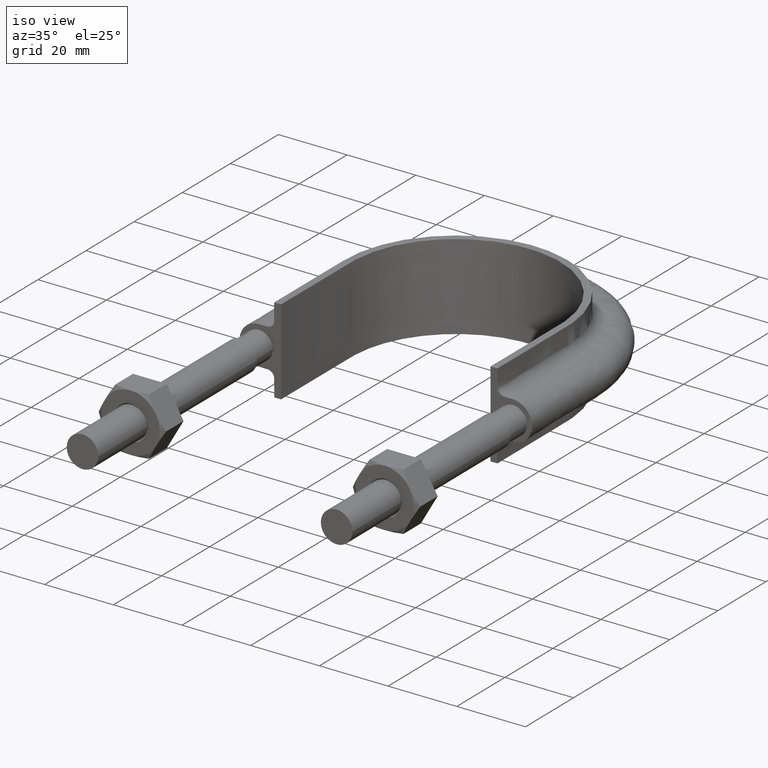
[diagram: clean part render]
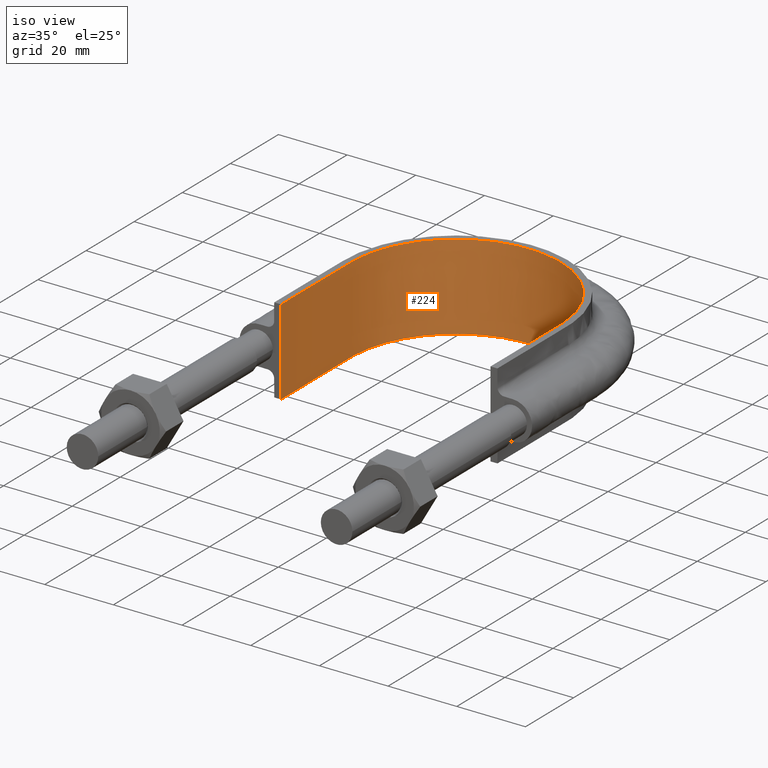
[diagram: tour spotlight — one face highlighted and labeled with its STEP entity id]
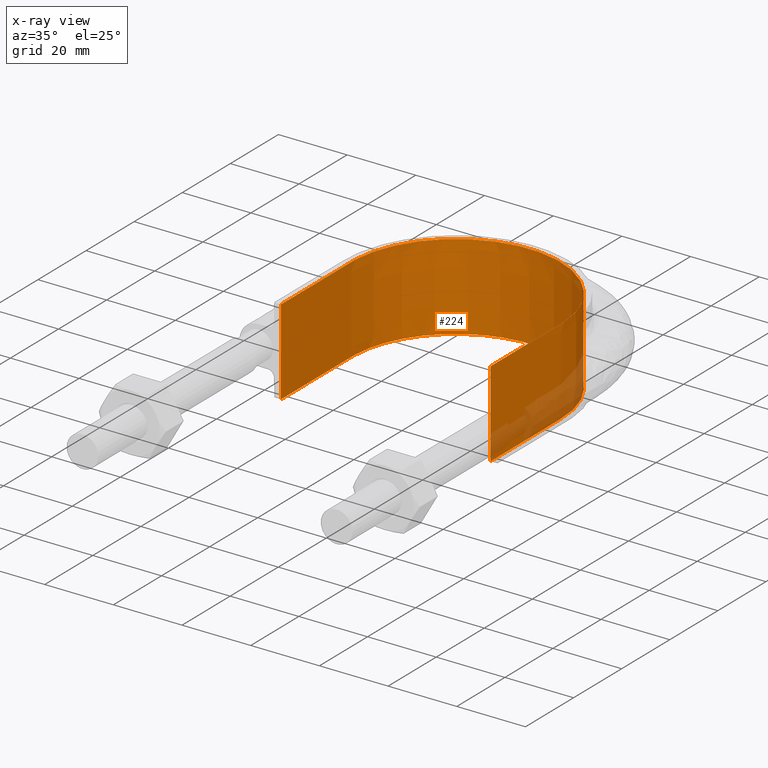
[diagram: x-ray of the same camera — body ghosted, this tour face saturated]
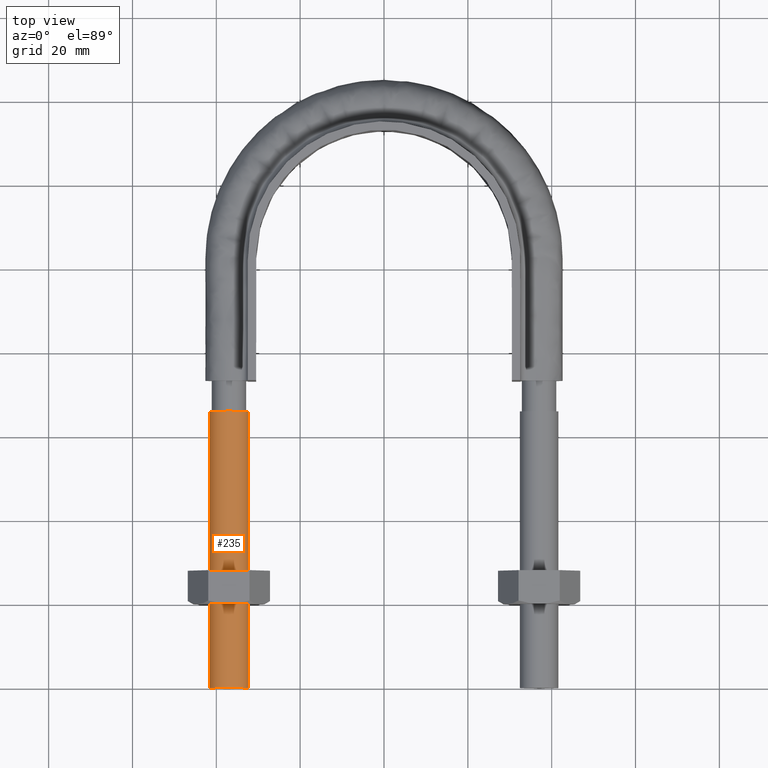
[diagram: tour spotlight — one face highlighted and labeled with its STEP entity id]
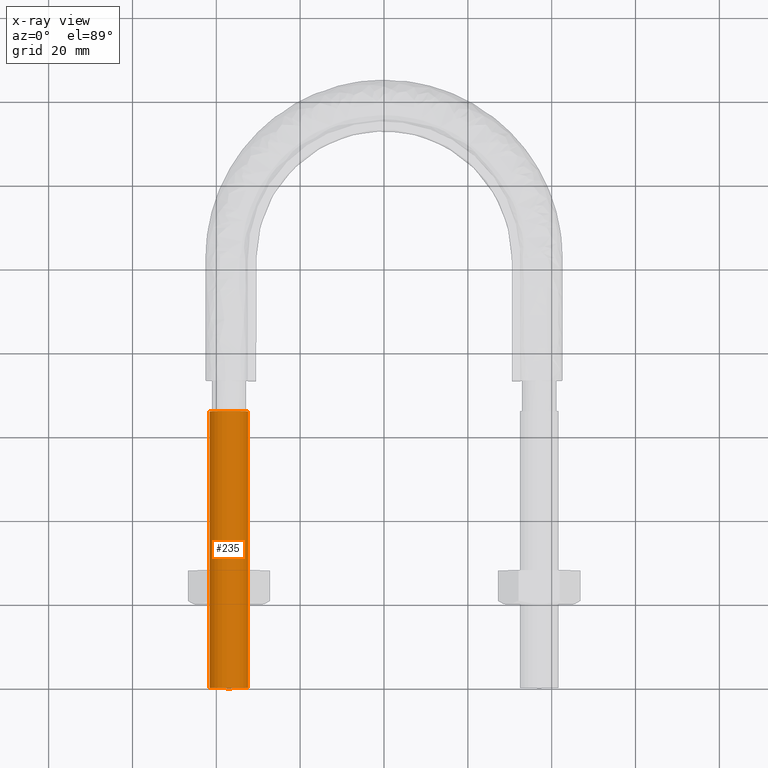
[diagram: x-ray of the same camera — body ghosted, this tour face saturated]
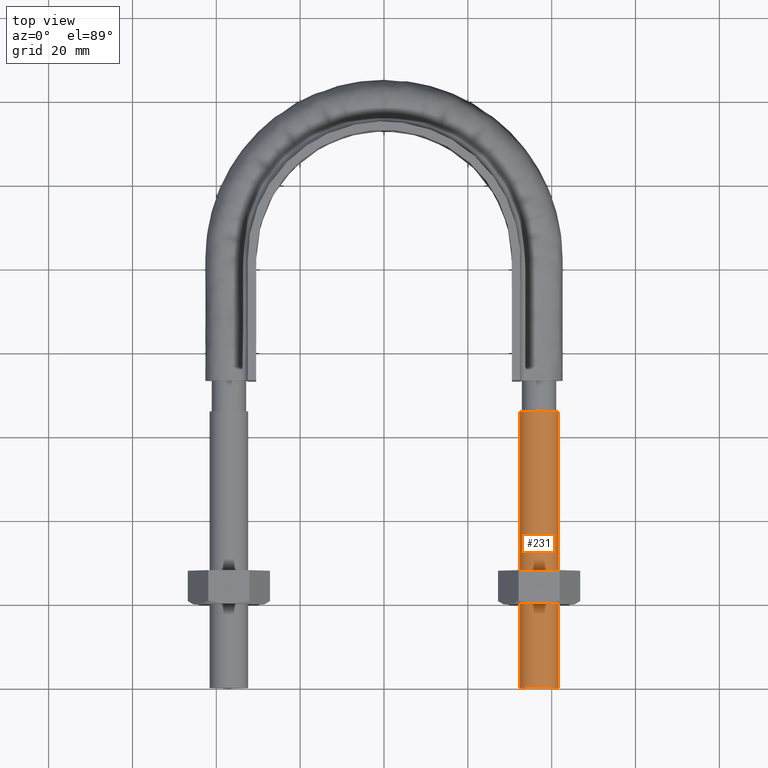
[diagram: tour spotlight — one face highlighted and labeled with its STEP entity id]
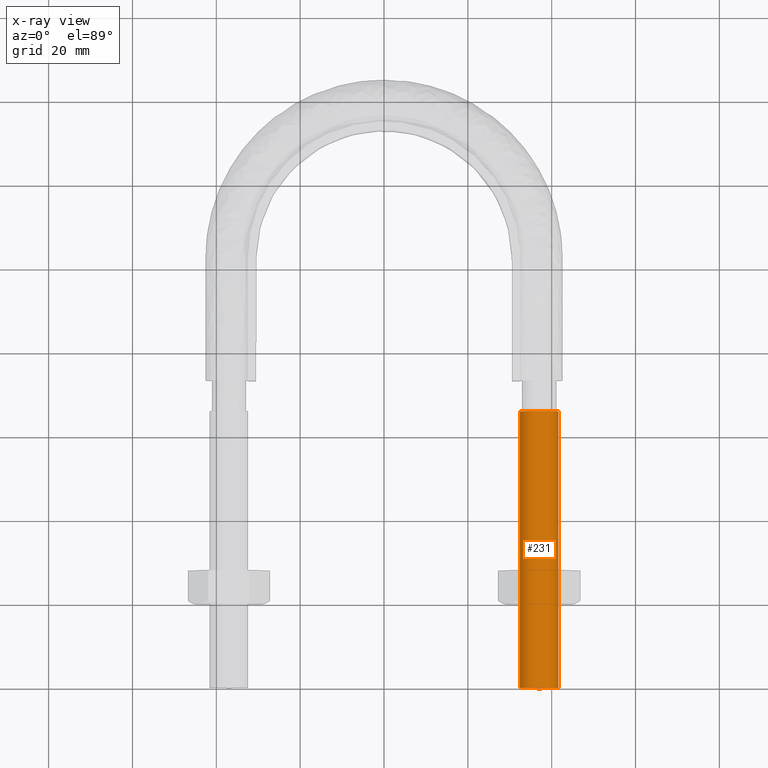
[diagram: x-ray of the same camera — body ghosted, this tour face saturated]
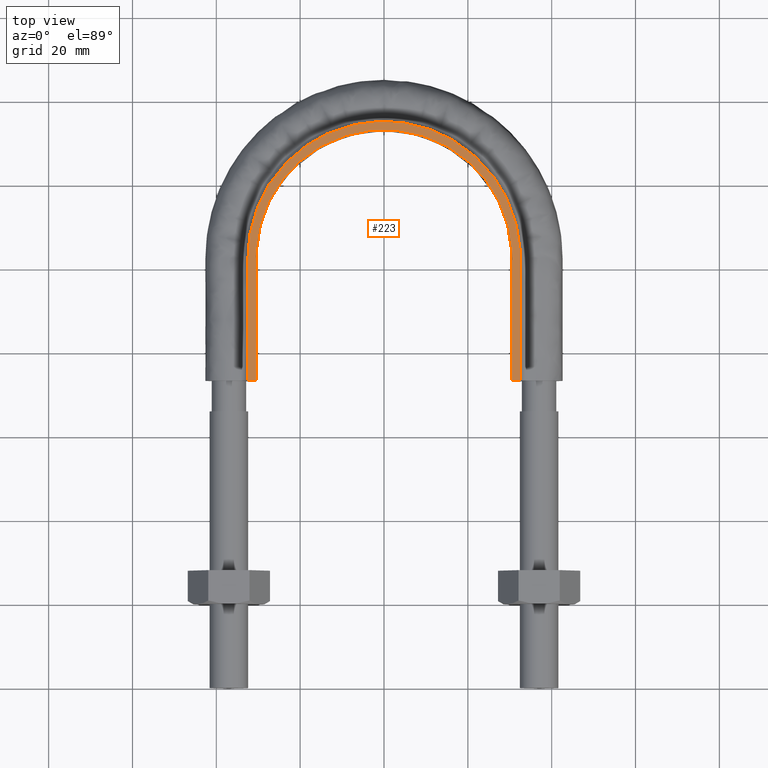
[diagram: tour spotlight — one face highlighted and labeled with its STEP entity id]
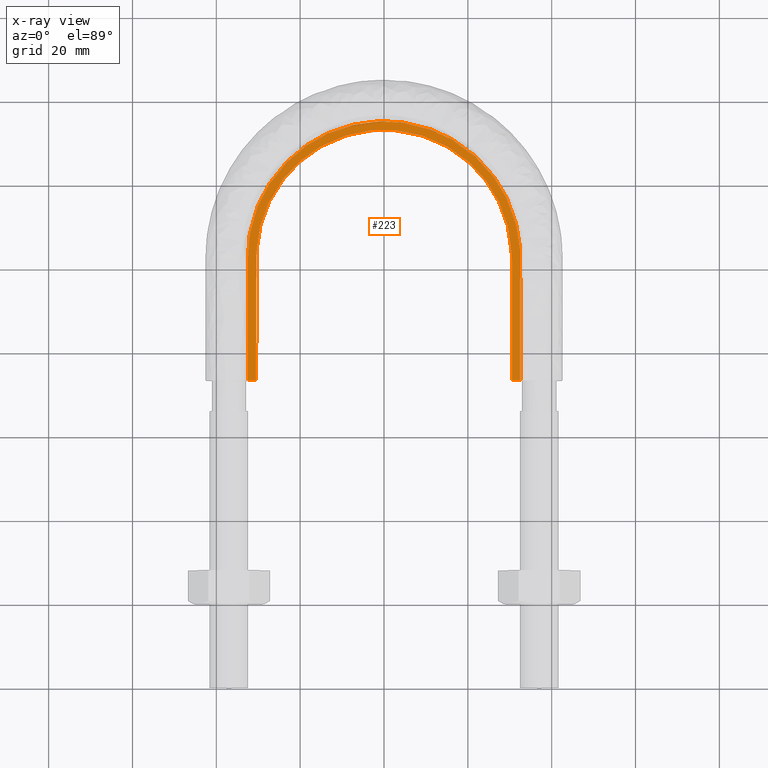
[diagram: x-ray of the same camera — body ghosted, this tour face saturated]
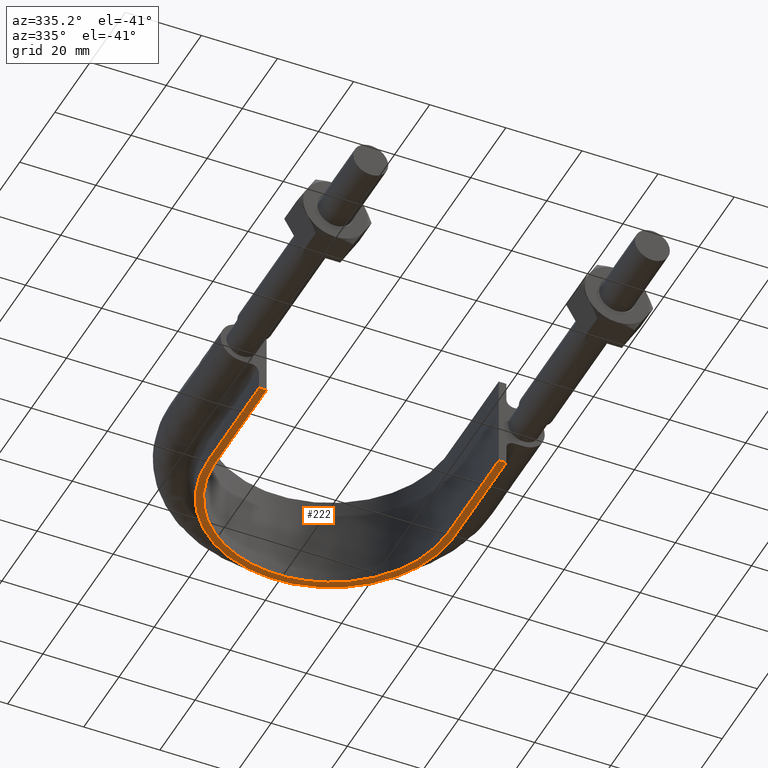
[diagram: tour spotlight — one face highlighted and labeled with its STEP entity id]
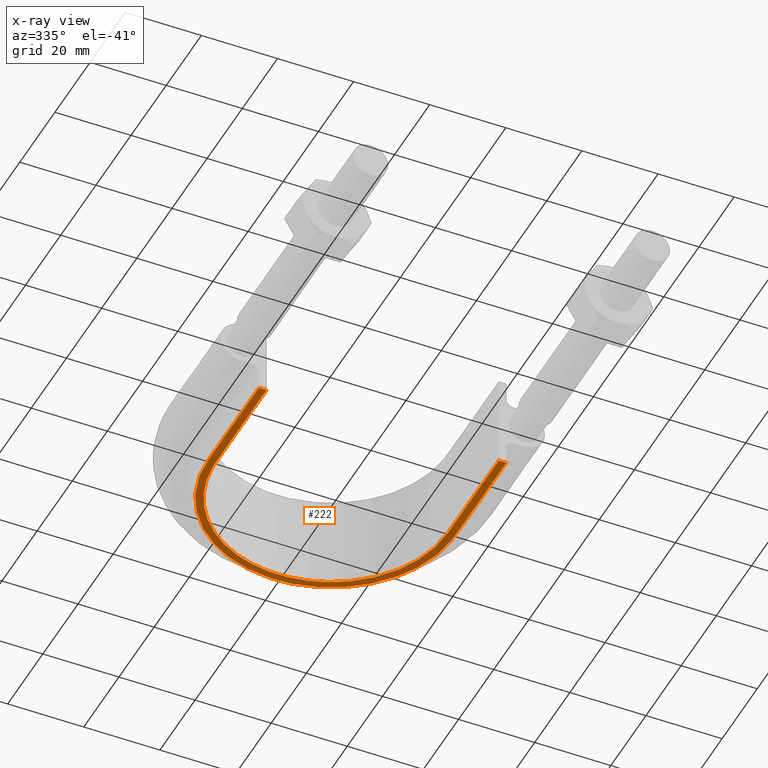
[diagram: x-ray of the same camera — body ghosted, this tour face saturated]
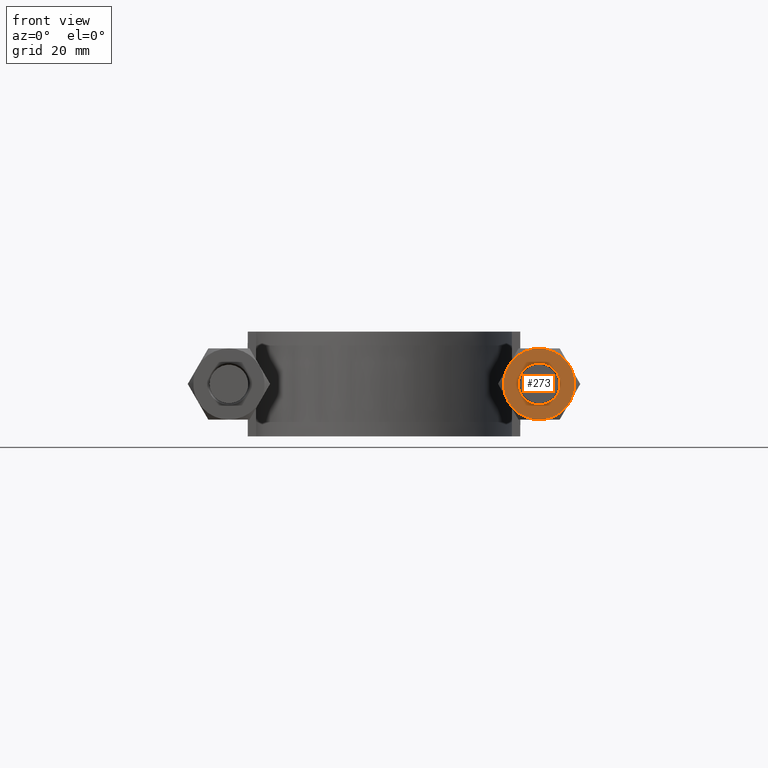
[diagram: tour spotlight — one face highlighted and labeled with its STEP entity id]
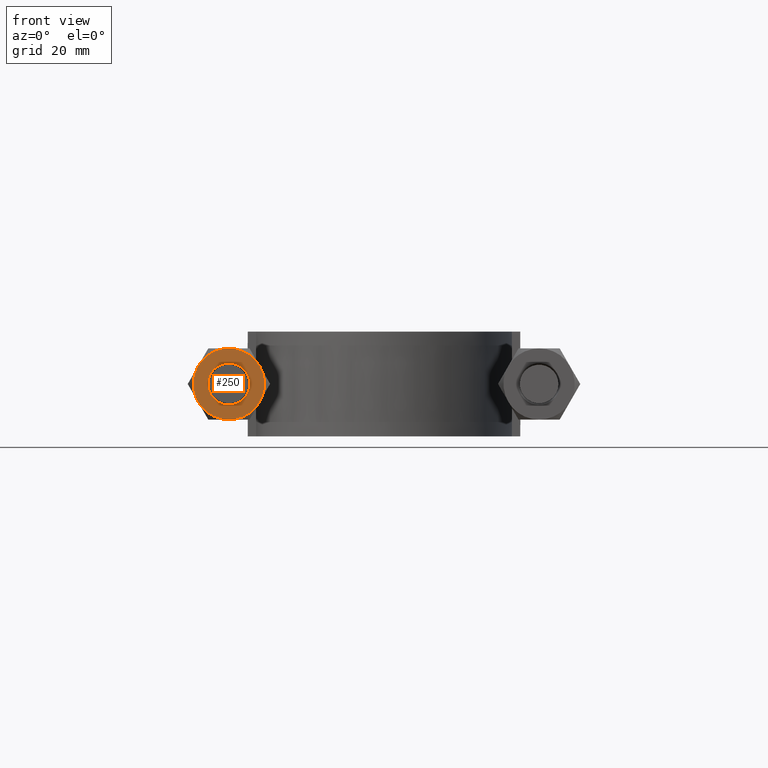
[diagram: tour spotlight — one face highlighted and labeled with its STEP entity id]
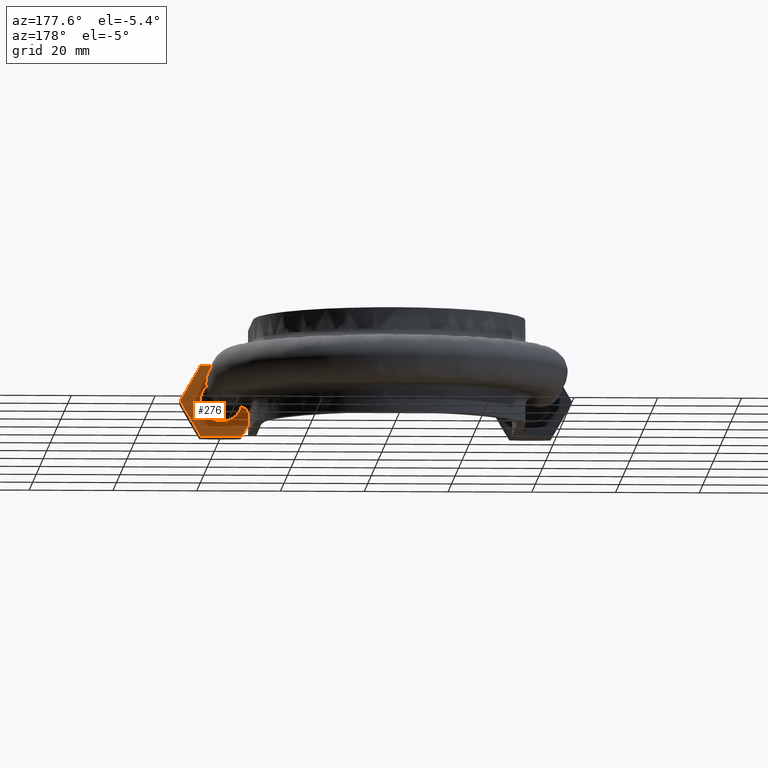
[diagram: tour spotlight — one face highlighted and labeled with its STEP entity id]
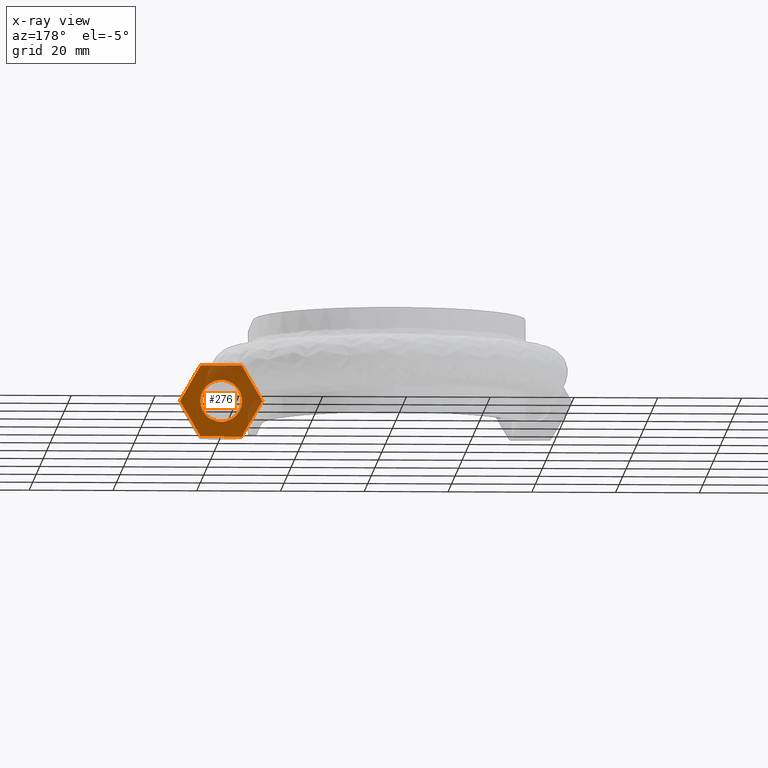
[diagram: x-ray of the same camera — body ghosted, this tour face saturated]
A machine part: a face-by-face anatomy tour. The part has 76 B-rep faces; the first image is the clean iso view, then the 8 largest visible faces are spotlighted one at a time (largest first), each with its STEP entity span.

Face 1 — iso view, entity #224. An x-ray twin of the same camera follows (body ghosted, this face saturated) — the face is partly hidden behind the body. In plain terms, the highlighted face is a SurfaceOfExtrusion surface.
Definition (entity closure, byte-faithful):
#224 = ADVANCED_FACE( '', ( #308 ), #309, .T. );
#308 = FACE_OUTER_BOUND( '', #1006, .T. );
#309 = SURFACE_OF_LINEAR_EXTRUSION( '', #1007, #1008 );
#1006 = EDGE_LOOP( '', ( #1499, #1500, #1501, #1502 ) );
#1007 = B_SPLINE_CURVE_WITH_KNOTS( '', 3, ( #1503, #1504, #1505, #1506, #1507, #1508, #1509, #1510, #1511, #1512, #1513, #1514, #1515, #1516, #1517, #1518, #1519 ), .UNSPECIFIED., .F., .F., ( 4, 3, 1, 1, 1, 1, 1, 1, 1, 3, 4 ), ( -7.88217522658610, -7.00000000000000, -6.50000000000000, -6.00000000000000, -5.00000000000000, -4.00000000000000, -3.00000000000000, -2.00000000000000, -1.50000000000000, -1.00000000000000, -0.117824773413899 ), .UNSPECIFIED. );
#1008 = VECTOR( '', #1520, 1000.00000000000 );
#1499 = ORIENTED_EDGE( '', *, *, #2015, .T. );
#1500 = ORIENTED_EDGE( '', *, *, #2005, .F. );
#1501 = ORIENTED_EDGE( '', *, *, #2016, .F. );
#1502 = ORIENTED_EDGE( '', *, *, #2009, .T. );
#1503 = CARTESIAN_POINT( '', ( 30.5000000000000, 73.3000000000001, 12.5000100000910 ) );
#1504 = CARTESIAN_POINT( '', ( 30.5000000000000, 83.0333333333334, 12.5000100000910 ) );
#1505 = CARTESIAN_POINT( '', ( 30.5000000000000, 92.7666666666667, 12.5000100000910 ) );
#1506 = CARTESIAN_POINT( '', ( 30.5000000000001, 102.500000000000, 12.5000100000910 ) );
#1507 = CARTESIAN_POINT( '', ( 30.5000000000001, 105.146909574859, 12.5000100000910 ) );
#1508 = CARTESIAN_POINT( '', ( 29.7847488998591, 110.486937441059, 12.5000100000910 ) );
#1509 = CARTESIAN_POINT( '', ( 25.7022707691493, 120.407294151929, 12.5000100000910 ) );
#1510 = CARTESIAN_POINT( '', ( 15.9624408097424, 130.149665427345, 12.5000100000910 ) );
#1511 = CARTESIAN_POINT( '', ( 2.68701322531081E-014, 134.425167286328, 12.5000100000910 ) );
#1512 = CARTESIAN_POINT( '', ( -15.9624408097423, 130.149665427345, 12.5000100000910 ) );
#1513 = CARTESIAN_POINT( '', ( -25.7022707691492, 120.407294151929, 12.5000100000910 ) );
#1514 = CARTESIAN_POINT( '', ( -29.7847488998590, 110.486937441059, 12.5000100000910 ) );
#1515 = CARTESIAN_POINT( '', ( -30.5000000000000, 105.146909574859, 12.5000100000910 ) );
#1516 = CARTESIAN_POINT( '', ( -30.5000000000000, 102.500000000000, 12.5000100000910 ) );
#1517 = CARTESIAN_POINT( '', ( -30.5000000000000, 92.7666666666667, 12.5000100000910 ) );
#1518 = CARTESIAN_POINT( '', ( -30.5000000000000, 83.0333333333334, 12.5000100000910 ) );
#1519 = CARTESIAN_POINT( '', ( -30.5000000000000, 73.3000000000001, 12.5000100000910 ) );
#1520 = DIRECTION( '', ( 0.000000000000000, 0.000000000000000, -1.00000000000000 ) );
#2005 = EDGE_CURVE( '', #2157, #2160, #2161, .T. );
#2009 = EDGE_CURVE( '', #2167, #2168, #2169, .T. );
#2015 = EDGE_CURVE( '', #2168, #2160, #2177, .F. );
#2016 = EDGE_CURVE( '', #2167, #2157, #2178, .T. );
#2157 = VERTEX_POINT( '', #2416 );
#2160 = VERTEX_POINT( '', #2420 );
#2161 = LINE( '', #2421, #2422 );
#2167 = VERTEX_POINT( '', #2468 );
#2168 = VERTEX_POINT( '', #2469 );
#2169 = LINE( '', #2470, #2471 );
#2177 = B_SPLINE_CURVE_WITH_KNOTS( '', 3, ( #2543, #2544, #2545, #2546, #2547, #2548, #2549, #2550, #2551, #2552, #2553, #2554, #2555, #2556, #2557, #2558, #2559 ), .UNSPECIFIED., .F., .F., ( 4, 3, 1, 1, 1, 1, 1, 1, 1, 3, 4 ), ( -7.88217522658610, -7.00000000000000, -6.50000000000000, -6.00000000000000, -5.00000000000000, -4.00000000000000, -3.00000000000000, -2.00000000000000, -1.50000000000000, -1.00000000000000, -0.117824773413899 ), .UNSPECIFIED. );
#2178 = B_SPLINE_CURVE_WITH_KNOTS( '', 3, ( #2560, #2561, #2562, #2563, #2564, #2565, #2566, #2567, #2568, #2569, #2570, #2571, #2572, #2573, #2574, #2575, #2576, #2577, #2578, #2579, #2580, #2581, #2582, #2583, #2584, #2585, #2586, #2587, #2588, #2589, #2590, #2591, #2592, #2593, #2594, #2595, #2596, #2597, #2598, #2599, #2600, #2601, #2602, #2603, #2604, #2605, #2606, #2607, #2608, #2609, #2610, #2611, #2612, #2613, #2614, #2615, #2616, #2617, #2618, #2619, #2620, #2621, #2622, #2623, #2624, #2625, #2626, #2627, #2628, #2629, #2630, #2631, #2632, #2633 ), .UNSPECIFIED., .F., .F., ( 4, 1, 2, 2, 2, 2, 2, 2, 2, 2, 2, 2, 2, 2, 2, 2, 2, 2, 2, 2, 2, 2, 2, 2, 2, 2, 2, 2, 2, 2, 2, 2, 2, 2, 2, 2, 1, 4 ), ( 1.38777878078145E-017, 0.0192554222640502, 0.0288831333960754, 0.0300865972875785, 0.0312900611790816, 0.0336969889620879, 0.0385108445281006, 0.0433247000941133, 0.0445281639856164, 0.0457316278771196, 0.0481385556601259, 0.0529524112261385, 0.0553593390091448, 0.0577662667921511, 0.0625801223581636, 0.0649870501411699, 0.0673939779241762, 0.0722078334901888, 0.0746147612731951, 0.0770216890562013, 0.0818355446222139, 0.0842424724052202, 0.0866494001882264, 0.0914632557542390, 0.0938701835372453, 0.0962771113202516, 0.101090966886264, 0.103497894669270, 0.105904822452277, 0.110718678018289, 0.115532533584302, 0.117939461367308, 0.120346389150314, 0.122753316933320, 0.123956780824824, 0.125160244716327, 0.134787955848351, 0.154043378112401 ), .UNSPECIFIED. );
#2416 = CARTESIAN_POINT( '', ( 30.5000000000000, 73.3000000000001, 12.5000000000000 ) );
#2420 = CARTESIAN_POINT( '', ( 30.5000000000000, 73.3000000000001, -12.5000000000000 ) );
#2421 = CARTESIAN_POINT( '', ( 30.5000000000000, 73.3000000000001, 12.5000100000910 ) );
#2422 = VECTOR( '', #3075, 1000.00000000000 );
#2468 = CARTESIAN_POINT( '', ( -30.5000000000000, 73.3000000000001, 12.5000000000000 ) );
#2469 = CARTESIAN_POINT( '', ( -30.5000000000000, 73.3000000000001, -12.5000000000000 ) );
#2470 = CARTESIAN_POINT( '', ( -30.5000000000000, 73.3000000000001, 12.5000100000910 ) );
#2471 = VECTOR( '', #3077, 1000.00000000000 );
#2543 = CARTESIAN_POINT( '', ( 30.5000000000000, 73.3000000000001, -12.5000000000000 ) );
#2544 = CARTESIAN_POINT( '', ( 30.5000000000000, 83.0333333333334, -12.5000000000000 ) );
#2545 = CARTESIAN_POINT( '', ( 30.5000000000000, 92.7666666666667, -12.5000000000000 ) );
#2546 = CARTESIAN_POINT( '', ( 30.5000000000001, 102.500000000000, -12.5000000000000 ) );
#2547 = CARTESIAN_POINT( '', ( 30.5000000000001, 105.146909574859, -12.5000000000000 ) );
#2548 = CARTESIAN_POINT( '', ( 29.7847488998591, 110.486937441059, -12.5000000000000 ) );
#2549 = CARTESIAN_POINT( '', ( 25.7022707691493, 120.407294151929, -12.5000000000000 ) );
#2550 = CARTESIAN_POINT( '', ( 15.9624408097424, 130.149665427345, -12.5000000000000 ) );
#2551 = CARTESIAN_POINT( '', ( 2.68701322531081E-014, 134.425167286328, -12.5000000000000 ) );
#2552 = CARTESIAN_POINT( '', ( -15.9624408097423, 130.149665427345, -12.5000000000000 ) );
#2553 = CARTESIAN_POINT( '', ( -25.7022707691492, 120.407294151929, -12.5000000000000 ) );
#2554 = CARTESIAN_POINT( '', ( -29.7847488998590, 110.486937441059, -12.5000000000000 ) );
#2555 = CARTESIAN_POINT( '', ( -30.5000000000000, 105.146909574859, -12.5000000000000 ) );
#2556 = CARTESIAN_POINT( '', ( -30.5000000000000, 102.500000000000, -12.5000000000000 ) );
#2557 = CARTESIAN_POINT( '', ( -30.5000000000000, 92.7666666666667, -12.5000000000000 ) );
#2558 = CARTESIAN_POINT( '', ( -30.5000000000000, 83.0333333333334, -12.5000000000000 ) );
#2559 = CARTESIAN_POINT( '', ( -30.5000000000000, 73.3000000000001, -12.5000000000000 ) );
#2560 = CARTESIAN_POINT( '', ( -30.5000000000000, 73.3000000000001, 12.5000000000000 ) );
#2561 = CARTESIAN_POINT( '', ( -30.5000000000000, 79.7187970838913, 12.5000000000000 ) );
#2562 = CARTESIAN_POINT( '', ( -30.5000000000000, 89.3469927097280, 12.5000000000000 ) );
#2563 = CARTESIAN_POINT( '', ( -30.5000000000000, 98.9751883355648, 12.5000000000000 ) );
#2564 = CARTESIAN_POINT( '', ( -30.5000000000000, 102.585761695254, 12.5000000000000 ) );
#2565 = CARTESIAN_POINT( '', ( -30.4986844541323, 102.986923314969, 12.5000000000000 ) );
#2566 = CARTESIAN_POINT( '', ( -30.4745981741132, 103.789031308253, 12.5000000000000 ) );
#2567 = CARTESIAN_POINT( '', ( -30.4544492509140, 104.190003984771, 12.5000000000000 ) );
#2568 = CARTESIAN_POINT( '', ( -30.3699321862256, 105.392680532489, 12.5000000000000 ) );
#2569 = CARTESIAN_POINT( '', ( -30.2815513452004, 106.194196915207, 12.5000000000000 ) );
#2570 = CARTESIAN_POINT( '', ( -29.9199873207873, 108.597457571638, 12.5000000000000 ) );
#2571 = CARTESIAN_POINT( '', ( -29.5571198360746, 110.159787861722, 12.5000000000000 ) );
#2572 = CARTESIAN_POINT( '', ( -28.5972722047830, 113.207880590115, 12.5000000000000 ) );
#2573 = CARTESIAN_POINT( '', ( -28.0002144656636, 114.693617651351, 12.5000000000000 ) );
#2574 = CARTESIAN_POINT( '', ( -27.0992764629768, 116.500221008755, 12.5000000000000 ) );
#2575 = CARTESIAN_POINT( '', ( -26.9108830168222, 116.859704838131, 12.5000000000000 ) );
#2576 = CARTESIAN_POINT( '', ( -26.5213882779157, 117.567587786141, 12.5000000000000 ) );
#2577 = CARTESIAN_POINT( '', ( -26.3200606712640, 117.916474396834, 12.5000000000000 ) );
#2578 = CARTESIAN_POINT( '', ( -25.6966622493176, 118.948219384474, 12.5000000000000 ) );
#2579 = CARTESIAN_POINT( '', ( -25.2552822010554, 119.616244628455, 12.5000000000000 ) );
#2580 = CARTESIAN_POINT( '', ( -23.8563980365694, 121.562902855285, 12.5000000000000 ) );
#2581 = CARTESIAN_POINT( '', ( -22.8247599514250, 122.784586967087, 12.5000000000000 ) );
#2582 = CARTESIAN_POINT( '', ( -21.1277356912024, 124.502217366142, 12.5000000000000 ) );
#2583 = CARTESIAN_POINT( '', ( -20.5344294178501, 125.057480363821, 12.5000000000000 ) );
#2584 = CARTESIAN_POINT( '', ( -19.3154400053685, 126.111482848478, 12.5000000000000 ) );
#2585 = CARTESIAN_POINT( '', ( -18.6885192790513, 126.611839840476, 12.5000000000000 ) );
#2586 = CARTESIAN_POINT( '', ( -16.7561230155804, 128.033962699371, 12.5000000000000 ) );
#2587 = CARTESIAN_POINT( '', ( -15.3990725127794, 128.876870841468, 12.5000000000000 ) );
#2588 = CARTESIAN_POINT( '', ( -13.2570671195093, 129.978502957119, 12.5000000000000 ) );
#2589 = CARTESIAN_POINT( '', ( -12.5228230069798, 130.319814017707, 12.5000000000000 ) );
#2590 = CARTESIAN_POINT( '', ( -11.0306240768060, 130.942412499716, 12.5000000000000 ) );
#2591 = CARTESIAN_POINT( '', ( -10.2767436568867, 131.222274993299, 12.5000000000000 ) );
#2592 = CARTESIAN_POINT( '', ( -7.99256638845168, 131.970812104532, 12.5000000000000 ) );
#2593 = CARTESIAN_POINT( '', ( -6.43991564048132, 132.349172113475, 12.5000000000000 ) );
#2594 = CARTESIAN_POINT( '', ( -4.06589188416629, 132.734709900453, 12.5000000000000 ) );
#2595 = CARTESIAN_POINT( '', ( -3.26699737472987, 132.832705696047, 12.5000000000000 ) );
#2596 = CARTESIAN_POINT( '', ( -1.65347310558420, 132.965123458687, 12.5000000000000 ) );
#2597 = CARTESIAN_POINT( '', ( -0.846703494355764, 132.998768451046, 12.5000000000000 ) );
#2598 = CARTESIAN_POINT( '', ( 1.55984817231913, 133.002363337310, 12.5000000000000 ) );
#2599 = CARTESIAN_POINT( '', ( 3.15187678310374, 132.876183128002, 12.5000000000000 ) );
#2600 = CARTESIAN_POINT( '', ( 5.52210746155243, 132.501305428157, 12.5000000000000 ) );
#2601 = CARTESIAN_POINT( '', ( 6.30919715953041, 132.345218975853, 12.5000000000000 ) );
#2602 = CARTESIAN_POINT( '', ( 7.87729381106987, 131.969662553274, 12.5000000000000 ) );
#2603 = CARTESIAN_POINT( '', ( 8.65917048563715, 131.749575242180, 12.5000000000000 ) );
#2604 = CARTESIAN_POINT( '', ( 10.9545464152787, 131.005259840030, 12.5000000000000 ) );
#2605 = CARTESIAN_POINT( '', ( 12.4320231471581, 130.394841390723, 12.5000000000000 ) );
#2606 = CARTESIAN_POINT( '', ( 14.5688395440172, 129.307386671407, 12.5000000000000 ) );
#2607 = CARTESIAN_POINT( '', ( 15.2677563263256, 128.915999398825, 12.5000000000000 ) );
#2608 = CARTESIAN_POINT( '', ( 16.6381409078519, 128.073822399900, 12.5000000000000 ) );
#2609 = CARTESIAN_POINT( '', ( 17.3125759005460, 127.620964775786, 12.5000000000000 ) );
#2610 = CARTESIAN_POINT( '', ( 19.2664798661707, 126.192854811404, 12.5000000000000 ) );
#2611 = CARTESIAN_POINT( '', ( 20.4798446876838, 125.148667712286, 12.5000000000000 ) );
#2612 = CARTESIAN_POINT( '', ( 22.1715309172384, 123.449889227024, 12.5000000000000 ) );
#2613 = CARTESIAN_POINT( '', ( 22.7138929749291, 122.861402400307, 12.5000000000000 ) );
#2614 = CARTESIAN_POINT( '', ( 23.7548102890671, 121.639210134757, 12.5000000000000 ) );
#2615 = CARTESIAN_POINT( '', ( 24.2544864579076, 121.003952520684, 12.5000000000000 ) );
#2616 = CARTESIAN_POINT( '', ( 25.6776288297832, 119.037581170348, 12.5000000000000 ) );
#2617 = CARTESIAN_POINT( '', ( 26.5096219006963, 117.668392928187, 12.5000000000000 ) );
#2618 = CARTESIAN_POINT( '', ( 27.9456565910457, 114.816255937661, 12.5000000000000 ) );
#2619 = CARTESIAN_POINT( '', ( 28.5509590265555, 113.333936406938, 12.5000000000000 ) );
#2620 = CARTESIAN_POINT( '', ( 29.2876344042200, 111.024979684816, 12.5000000000000 ) );
#2621 = CARTESIAN_POINT( '', ( 29.5032356740682, 110.243977307862, 12.5000000000000 ) );
#2622 = CARTESIAN_POINT( '', ( 29.8703294719088, 108.679738122459, 12.5000000000000 ) );
#2623 = CARTESIAN_POINT( '', ( 30.0228181117526, 107.893587442054, 12.5000000000000 ) );
#2624 = CARTESIAN_POINT( '', ( 30.2663038414340, 106.313305021184, 12.5000000000000 ) );
#2625 = CARTESIAN_POINT( '', ( 30.3573018810972, 105.519173403997, 12.5000000000000 ) );
#2626 = CARTESIAN_POINT( '', ( 30.4466313783281, 104.321854045247, 12.5000000000000 ) );
#2627 = CARTESIAN_POINT( '', ( 30.4685308150341, 103.921725219210, 12.5000000000000 ) );
#2628 = CARTESIAN_POINT( '', ( 30.4961990804467, 103.119373956692, 12.5000000000000 ) );
#2629 = CARTESIAN_POINT( '', ( 30.5000000000000, 102.716896102985, 12.5000000000000 ) );
#2630 = CARTESIAN_POINT( '', ( 30.5000000000000, 99.0901554875486, 12.5000000000000 ) );
#2631 = CARTESIAN_POINT( '', ( 30.5000000000001, 89.4188471797180, 12.5000000000000 ) );
#2632 = CARTESIAN_POINT( '', ( 30.5000000000000, 79.7475388718873, 12.5000000000000 ) );
#2633 = CARTESIAN_POINT( '', ( 30.5000000000000, 73.3000000000001, 12.5000000000000 ) );
#3075 = DIRECTION( '', ( 0.000000000000000, 0.000000000000000, -1.00000000000000 ) );
#3077 = DIRECTION( '', ( 0.000000000000000, 0.000000000000000, -1.00000000000000 ) );

Face 2 — top view, entity #235. An x-ray twin of the same camera follows (body ghosted, this face saturated) — the face is partly hidden behind the body. In plain terms, the highlighted cylindrical surface (bore or boss wall) has radius 4.6 mm, axis along (0, 1, -0).
Definition (entity closure, byte-faithful):
#235 = ADVANCED_FACE( '', ( #336, #337 ), #338, .T. );
#336 = FACE_OUTER_BOUND( '', #1333, .T. );
#337 = FACE_OUTER_BOUND( '', #1334, .T. );
#338 = CYLINDRICAL_SURFACE( '', #1335, 4.60000000000000 );
#1333 = EDGE_LOOP( '', ( #1588 ) );
#1334 = EDGE_LOOP( '', ( #1589 ) );
#1335 = AXIS2_PLACEMENT_3D( '', #1590, #1591, #1592 );
#1588 = ORIENTED_EDGE( '', *, *, #2049, .T. );
#1589 = ORIENTED_EDGE( '', *, *, #2050, .F. );
#1590 = CARTESIAN_POINT( '', ( -37.0000000000000, 66.0000000000000, -4.07793915822852E-015 ) );
#1591 = DIRECTION( '', ( 2.44921270764475E-016, 1.00000000000000, -6.12303176911189E-017 ) );
#1592 = DIRECTION( '', ( 1.00000000000000, -2.44921270764475E-016, 0.000000000000000 ) );
#2049 = EDGE_CURVE( '', #2229, #2229, #2230, .T. );
#2050 = EDGE_CURVE( '', #2231, #2231, #2232, .T. );
#2229 = VERTEX_POINT( '', #2726 );
#2230 = CIRCLE( '', #2727, 4.60000000000000 );
#2231 = VERTEX_POINT( '', #2728 );
#2232 = CIRCLE( '', #2729, 4.60000000000000 );
#2726 = CARTESIAN_POINT( '', ( -32.4000000000000, 66.0000000000000, -4.07793915822852E-015 ) );
#2727 = AXIS2_PLACEMENT_3D( '', #3134, #3135, #3136 );
#2728 = CARTESIAN_POINT( '', ( -32.4000000000000, 7.93544917276900E-015, -3.67381906146716E-017 ) );
#2729 = AXIS2_PLACEMENT_3D( '', #3137, #3138, #3139 );
#3134 = CARTESIAN_POINT( '', ( -37.0000000000000, 66.0000000000000, -4.07793915822852E-015 ) );
#3135 = DIRECTION( '', ( -2.44921270764475E-016, -1.00000000000000, 6.12303176911189E-017 ) );
#3136 = DIRECTION( '', ( 1.00000000000000, -2.44921270764475E-016, 0.000000000000000 ) );
#3137 = CARTESIAN_POINT( '', ( -37.0000000000000, 9.06208701828559E-015, -3.67381906146716E-017 ) );
#3138 = DIRECTION( '', ( -2.44921270764475E-016, -1.00000000000000, 6.12303176911189E-017 ) );
#3139 = DIRECTION( '', ( 1.00000000000000, -2.44921270764475E-016, 0.000000000000000 ) );

Face 3 — top view, entity #231. An x-ray twin of the same camera follows (body ghosted, this face saturated) — the face is partly hidden behind the body. In plain terms, the highlighted cylindrical surface (bore or boss wall) has radius 4.6 mm, axis along (0, 1, -0).
Definition (entity closure, byte-faithful):
#231 = ADVANCED_FACE( '', ( #326, #327 ), #328, .T. );
#326 = FACE_OUTER_BOUND( '', #1323, .T. );
#327 = FACE_OUTER_BOUND( '', #1324, .T. );
#328 = CYLINDRICAL_SURFACE( '', #1325, 4.60000000000000 );
#1323 = EDGE_LOOP( '', ( #1569 ) );
#1324 = EDGE_LOOP( '', ( #1570 ) );
#1325 = AXIS2_PLACEMENT_3D( '', #1571, #1572, #1573 );
#1569 = ORIENTED_EDGE( '', *, *, #2047, .T. );
#1570 = ORIENTED_EDGE( '', *, *, #2048, .F. );
#1571 = CARTESIAN_POINT( '', ( 37.0000000000000, 66.0000000000000, -4.07793915822852E-015 ) );
#1572 = DIRECTION( '', ( 2.44921270764475E-016, 1.00000000000000, -6.12303176911189E-017 ) );
#1573 = DIRECTION( '', ( 1.00000000000000, -2.44921270764475E-016, 0.000000000000000 ) );
#2047 = EDGE_CURVE( '', #2225, #2225, #2226, .T. );
#2048 = EDGE_CURVE( '', #2227, #2227, #2228, .T. );
#2225 = VERTEX_POINT( '', #2722 );
#2226 = CIRCLE( '', #2723, 4.60000000000000 );
#2227 = VERTEX_POINT( '', #2724 );
#2228 = CIRCLE( '', #2725, 4.60000000000000 );
#2722 = CARTESIAN_POINT( '', ( 41.6000000000000, 66.0000000000000, -4.07793915822852E-015 ) );
#2723 = AXIS2_PLACEMENT_3D( '', #3128, #3129, #3130 );
#2724 = CARTESIAN_POINT( '', ( 41.6000000000000, -1.01887248638022E-014, -3.67381906146710E-017 ) );
#2725 = AXIS2_PLACEMENT_3D( '', #3131, #3132, #3133 );
#3128 = CARTESIAN_POINT( '', ( 37.0000000000000, 66.0000000000000, -4.07793915822852E-015 ) );
#3129 = DIRECTION( '', ( -2.44921270764476E-016, -1.00000000000000, 6.12303176911189E-017 ) );
#3130 = DIRECTION( '', ( 1.00000000000000, -2.44921270764476E-016, 1.02543741170147E-047 ) );
#3131 = CARTESIAN_POINT( '', ( 37.0000000000000, -9.06208701828559E-015, -3.67381906146710E-017 ) );
#3132 = DIRECTION( '', ( -2.44921270764476E-016, -1.00000000000000, 6.12303176911189E-017 ) );
#3133 = DIRECTION( '', ( 1.00000000000000, -2.44921270764476E-016, 1.02543741170147E-047 ) );

Face 4 — top view, entity #223. An x-ray twin of the same camera follows (body ghosted, this face saturated) — the face is partly hidden behind the body. In plain terms, the highlighted planar face has unit normal (0, 0, 1).
Definition (entity closure, byte-faithful):
#223 = ADVANCED_FACE( '', ( #306 ), #307, .T. );
#306 = FACE_OUTER_BOUND( '', #1004, .T. );
#307 = PLANE( '', #1005 );
#1004 = EDGE_LOOP( '', ( #1492, #1493, #1494, #1495 ) );
#1005 = AXIS2_PLACEMENT_3D( '', #1496, #1497, #1498 );
#1492 = ORIENTED_EDGE( '', *, *, #2010, .T. );
#1493 = ORIENTED_EDGE( '', *, *, #2016, .T. );
#1494 = ORIENTED_EDGE( '', *, *, #2004, .T. );
#1495 = ORIENTED_EDGE( '', *, *, #2014, .F. );
#1496 = CARTESIAN_POINT( '', ( 45.0000000000000, 153.300000000000, 12.5000000000000 ) );
#1497 = DIRECTION( '', ( 0.000000000000000, 0.000000000000000, 1.00000000000000 ) );
#1498 = DIRECTION( '', ( 1.22460635382238E-016, 1.00000000000000, 0.000000000000000 ) );
#2004 = EDGE_CURVE( '', #2157, #2158, #2159, .T. );
#2010 = EDGE_CURVE( '', #2170, #2167, #2171, .T. );
#2014 = EDGE_CURVE( '', #2170, #2158, #2176, .T. );
#2016 = EDGE_CURVE( '', #2167, #2157, #2178, .T. );
#2157 = VERTEX_POINT( '', #2416 );
#2158 = VERTEX_POINT( '', #2417 );
#2159 = LINE( '', #2418, #2419 );
#2167 = VERTEX_POINT( '', #2468 );
#2170 = VERTEX_POINT( '', #2472 );
#2171 = LINE( '', #2473, #2474 );
#2176 = B_SPLINE_CURVE_WITH_KNOTS( '', 3, ( #2526, #2527, #2528, #2529, #2530, #2531, #2532, #2533, #2534, #2535, #2536, #2537, #2538, #2539, #2540, #2541, #2542 ), .UNSPECIFIED., .F., .F., ( 4, 3, 1, 1, 1, 1, 1, 1, 1, 3, 4 ), ( 0.117824773413900, 1.00000000000000, 1.50000000000000, 2.00000000000000, 3.00000000000000, 4.00000000000000, 5.00000000000000, 6.00000000000000, 6.50000000000000, 7.00000000000000, 7.88217522658610 ), .UNSPECIFIED. );
#2178 = B_SPLINE_CURVE_WITH_KNOTS( '', 3, ( #2560, #2561, #2562, #2563, #2564, #2565, #2566, #2567, #2568, #2569, #2570, #2571, #2572, #2573, #2574, #2575, #2576, #2577, #2578, #2579, #2580, #2581, #2582, #2583, #2584, #2585, #2586, #2587, #2588, #2589, #2590, #2591, #2592, #2593, #2594, #2595, #2596, #2597, #2598, #2599, #2600, #2601, #2602, #2603, #2604, #2605, #2606, #2607, #2608, #2609, #2610, #2611, #2612, #2613, #2614, #2615, #2616, #2617, #2618, #2619, #2620, #2621, #2622, #2623, #2624, #2625, #2626, #2627, #2628, #2629, #2630, #2631, #2632, #2633 ), .UNSPECIFIED., .F., .F., ( 4, 1, 2, 2, 2, 2, 2, 2, 2, 2, 2, 2, 2, 2, 2, 2, 2, 2, 2, 2, 2, 2, 2, 2, 2, 2, 2, 2, 2, 2, 2, 2, 2, 2, 2, 2, 1, 4 ), ( 1.38777878078145E-017, 0.0192554222640502, 0.0288831333960754, 0.0300865972875785, 0.0312900611790816, 0.0336969889620879, 0.0385108445281006, 0.0433247000941133, 0.0445281639856164, 0.0457316278771196, 0.0481385556601259, 0.0529524112261385, 0.0553593390091448, 0.0577662667921511, 0.0625801223581636, 0.0649870501411699, 0.0673939779241762, 0.0722078334901888, 0.0746147612731951, 0.0770216890562013, 0.0818355446222139, 0.0842424724052202, 0.0866494001882264, 0.0914632557542390, 0.0938701835372453, 0.0962771113202516, 0.101090966886264, 0.103497894669270, 0.105904822452277, 0.110718678018289, 0.115532533584302, 0.117939461367308, 0.120346389150314, 0.122753316933320, 0.123956780824824, 0.125160244716327, 0.134787955848351, 0.154043378112401 ), .UNSPECIFIED. );
#2416 = CARTESIAN_POINT( '', ( 30.5000000000000, 73.3000000000001, 12.5000000000000 ) );
#2417 = CARTESIAN_POINT( '', ( 32.5000000000000, 73.3000000000001, 12.5000000000000 ) );
#2418 = CARTESIAN_POINT( '', ( -45.0000000000000, 73.3000000000001, 12.5000000000000 ) );
#2419 = VECTOR( '', #3074, 1000.00000000000 );
#2468 = CARTESIAN_POINT( '', ( -30.5000000000000, 73.3000000000001, 12.5000000000000 ) );
#2472 = CARTESIAN_POINT( '', ( -32.5000000000000, 73.3000000000001, 12.5000000000000 ) );
#2473 = CARTESIAN_POINT( '', ( -45.0000000000000, 73.3000000000001, 12.5000000000000 ) );
#2474 = VECTOR( '', #3078, 1000.00000000000 );
#2526 = CARTESIAN_POINT( '', ( -32.5000000000000, 73.3000000000001, 12.5000000000000 ) );
#2527 = CARTESIAN_POINT( '', ( -32.5000000000000, 83.0333333333334, 12.5000000000000 ) );
#2528 = CARTESIAN_POINT( '', ( -32.5000000000000, 92.7666666666667, 12.5000000000000 ) );
#2529 = CARTESIAN_POINT( '', ( -32.5000000000000, 102.500000000000, 12.5000000000000 ) );
#2530 = CARTESIAN_POINT( '', ( -32.5000000000000, 105.325542369813, 12.5000000000000 ) );
#2531 = CARTESIAN_POINT( '', ( -31.7387347919768, 111.008617759312, 12.5000000000000 ) );
#2532 = CARTESIAN_POINT( '', ( -27.3871545291852, 121.582731692400, 12.5000000000000 ) );
#2533 = CARTESIAN_POINT( '', ( -17.0093196223625, 131.962325971844, 12.5000000000000 ) );
#2534 = CARTESIAN_POINT( '', ( 3.23306948061794E-014, 136.518837014078, 12.5000000000000 ) );
#2535 = CARTESIAN_POINT( '', ( 17.0093196223626, 131.962325971844, 12.5000000000000 ) );
#2536 = CARTESIAN_POINT( '', ( 27.3871545291853, 121.582731692400, 12.5000000000000 ) );
#2537 = CARTESIAN_POINT( '', ( 31.7387347919769, 111.008617759312, 12.5000000000000 ) );
#2538 = CARTESIAN_POINT( '', ( 32.5000000000000, 105.325542369813, 12.5000000000000 ) );
#2539 = CARTESIAN_POINT( '', ( 32.5000000000000, 102.500000000000, 12.5000000000000 ) );
#2540 = CARTESIAN_POINT( '', ( 32.5000000000000, 92.7666666666667, 12.5000000000000 ) );
#2541 = CARTESIAN_POINT( '', ( 32.5000000000000, 83.0333333333334, 12.5000000000000 ) );
#2542 = CARTESIAN_POINT( '', ( 32.5000000000000, 73.3000000000001, 12.5000000000000 ) );
#2560 = CARTESIAN_POINT( '', ( -30.5000000000000, 73.3000000000001, 12.5000000000000 ) );
#2561 = CARTESIAN_POINT( '', ( -30.5000000000000, 79.7187970838913, 12.5000000000000 ) );
#2562 = CARTESIAN_POINT( '', ( -30.5000000000000, 89.3469927097280, 12.5000000000000 ) );
#2563 = CARTESIAN_POINT( '', ( -30.5000000000000, 98.9751883355648, 12.5000000000000 ) );
#2564 = CARTESIAN_POINT( '', ( -30.5000000000000, 102.585761695254, 12.5000000000000 ) );
#2565 = CARTESIAN_POINT( '', ( -30.4986844541323, 102.986923314969, 12.5000000000000 ) );
#2566 = CARTESIAN_POINT( '', ( -30.4745981741132, 103.789031308253, 12.5000000000000 ) );
#2567 = CARTESIAN_POINT( '', ( -30.4544492509140, 104.190003984771, 12.5000000000000 ) );
#2568 = CARTESIAN_POINT( '', ( -30.3699321862256, 105.392680532489, 12.5000000000000 ) );
#2569 = CARTESIAN_POINT( '', ( -30.2815513452004, 106.194196915207, 12.5000000000000 ) );
#2570 = CARTESIAN_POINT( '', ( -29.9199873207873, 108.597457571638, 12.5000000000000 ) );
#2571 = CARTESIAN_POINT( '', ( -29.5571198360746, 110.159787861722, 12.5000000000000 ) );
#2572 = CARTESIAN_POINT( '', ( -28.5972722047830, 113.207880590115, 12.5000000000000 ) );
#2573 = CARTESIAN_POINT( '', ( -28.0002144656636, 114.693617651351, 12.5000000000000 ) );
#2574 = CARTESIAN_POINT( '', ( -27.0992764629768, 116.500221008755, 12.5000000000000 ) );
#2575 = CARTESIAN_POINT( '', ( -26.9108830168222, 116.859704838131, 12.5000000000000 ) );
#2576 = CARTESIAN_POINT( '', ( -26.5213882779157, 117.567587786141, 12.5000000000000 ) );
#2577 = CARTESIAN_POINT( '', ( -26.3200606712640, 117.916474396834, 12.5000000000000 ) );
#2578 = CARTESIAN_POINT( '', ( -25.6966622493176, 118.948219384474, 12.5000000000000 ) );
#2579 = CARTESIAN_POINT( '', ( -25.2552822010554, 119.616244628455, 12.5000000000000 ) );
#2580 = CARTESIAN_POINT( '', ( -23.8563980365694, 121.562902855285, 12.5000000000000 ) );
#2581 = CARTESIAN_POINT( '', ( -22.8247599514250, 122.784586967087, 12.5000000000000 ) );
#2582 = CARTESIAN_POINT( '', ( -21.1277356912024, 124.502217366142, 12.5000000000000 ) );
#2583 = CARTESIAN_POINT( '', ( -20.5344294178501, 125.057480363821, 12.5000000000000 ) );
#2584 = CARTESIAN_POINT( '', ( -19.3154400053685, 126.111482848478, 12.5000000000000 ) );
#2585 = CARTESIAN_POINT( '', ( -18.6885192790513, 126.611839840476, 12.5000000000000 ) );
#2586 = CARTESIAN_POINT( '', ( -16.7561230155804, 128.033962699371, 12.5000000000000 ) );
#2587 = CARTESIAN_POINT( '', ( -15.3990725127794, 128.876870841468, 12.5000000000000 ) );
#2588 = CARTESIAN_POINT( '', ( -13.2570671195093, 129.978502957119, 12.5000000000000 ) );
#2589 = CARTESIAN_POINT( '', ( -12.5228230069798, 130.319814017707, 12.5000000000000 ) );
#2590 = CARTESIAN_POINT( '', ( -11.0306240768060, 130.942412499716, 12.5000000000000 ) );
#2591 = CARTESIAN_POINT( '', ( -10.2767436568867, 131.222274993299, 12.5000000000000 ) );
#2592 = CARTESIAN_POINT( '', ( -7.99256638845168, 131.970812104532, 12.5000000000000 ) );
#2593 = CARTESIAN_POINT( '', ( -6.43991564048132, 132.349172113475, 12.5000000000000 ) );
#2594 = CARTESIAN_POINT( '', ( -4.06589188416629, 132.734709900453, 12.5000000000000 ) );
#2595 = CARTESIAN_POINT( '', ( -3.26699737472987, 132.832705696047, 12.5000000000000 ) );
#2596 = CARTESIAN_POINT( '', ( -1.65347310558420, 132.965123458687, 12.5000000000000 ) );
#2597 = CARTESIAN_POINT( '', ( -0.846703494355764, 132.998768451046, 12.5000000000000 ) );
#2598 = CARTESIAN_POINT( '', ( 1.55984817231913, 133.002363337310, 12.5000000000000 ) );
#2599 = CARTESIAN_POINT( '', ( 3.15187678310374, 132.876183128002, 12.5000000000000 ) );
#2600 = CARTESIAN_POINT( '', ( 5.52210746155243, 132.501305428157, 12.5000000000000 ) );
#2601 = CARTESIAN_POINT( '', ( 6.30919715953041, 132.345218975853, 12.5000000000000 ) );
#2602 = CARTESIAN_POINT( '', ( 7.87729381106987, 131.969662553274, 12.5000000000000 ) );
#2603 = CARTESIAN_POINT( '', ( 8.65917048563715, 131.749575242180, 12.5000000000000 ) );
#2604 = CARTESIAN_POINT( '', ( 10.9545464152787, 131.005259840030, 12.5000000000000 ) );
#2605 = CARTESIAN_POINT( '', ( 12.4320231471581, 130.394841390723, 12.5000000000000 ) );
#2606 = CARTESIAN_POINT( '', ( 14.5688395440172, 129.307386671407, 12.5000000000000 ) );
#2607 = CARTESIAN_POINT( '', ( 15.2677563263256, 128.915999398825, 12.5000000000000 ) );
#2608 = CARTESIAN_POINT( '', ( 16.6381409078519, 128.073822399900, 12.5000000000000 ) );
#2609 = CARTESIAN_POINT( '', ( 17.3125759005460, 127.620964775786, 12.5000000000000 ) );
#2610 = CARTESIAN_POINT( '', ( 19.2664798661707, 126.192854811404, 12.5000000000000 ) );
#2611 = CARTESIAN_POINT( '', ( 20.4798446876838, 125.148667712286, 12.5000000000000 ) );
#2612 = CARTESIAN_POINT( '', ( 22.1715309172384, 123.449889227024, 12.5000000000000 ) );
#2613 = CARTESIAN_POINT( '', ( 22.7138929749291, 122.861402400307, 12.5000000000000 ) );
#2614 = CARTESIAN_POINT( '', ( 23.7548102890671, 121.639210134757, 12.5000000000000 ) );
#2615 = CARTESIAN_POINT( '', ( 24.2544864579076, 121.003952520684, 12.5000000000000 ) );
#2616 = CARTESIAN_POINT( '', ( 25.6776288297832, 119.037581170348, 12.5000000000000 ) );
#2617 = CARTESIAN_POINT( '', ( 26.5096219006963, 117.668392928187, 12.5000000000000 ) );
#2618 = CARTESIAN_POINT( '', ( 27.9456565910457, 114.816255937661, 12.5000000000000 ) );
#2619 = CARTESIAN_POINT( '', ( 28.5509590265555, 113.333936406938, 12.5000000000000 ) );
#2620 = CARTESIAN_POINT( '', ( 29.2876344042200, 111.024979684816, 12.5000000000000 ) );
#2621 = CARTESIAN_POINT( '', ( 29.5032356740682, 110.243977307862, 12.5000000000000 ) );
#2622 = CARTESIAN_POINT( '', ( 29.8703294719088, 108.679738122459, 12.5000000000000 ) );
#2623 = CARTESIAN_POINT( '', ( 30.0228181117526, 107.893587442054, 12.5000000000000 ) );
#2624 = CARTESIAN_POINT( '', ( 30.2663038414340, 106.313305021184, 12.5000000000000 ) );
#2625 = CARTESIAN_POINT( '', ( 30.3573018810972, 105.519173403997, 12.5000000000000 ) );
#2626 = CARTESIAN_POINT( '', ( 30.4466313783281, 104.321854045247, 12.5000000000000 ) );
#2627 = CARTESIAN_POINT( '', ( 30.4685308150341, 103.921725219210, 12.5000000000000 ) );
#2628 = CARTESIAN_POINT( '', ( 30.4961990804467, 103.119373956692, 12.5000000000000 ) );
#2629 = CARTESIAN_POINT( '', ( 30.5000000000000, 102.716896102985, 12.5000000000000 ) );
#2630 = CARTESIAN_POINT( '', ( 30.5000000000000, 99.0901554875486, 12.5000000000000 ) );
#2631 = CARTESIAN_POINT( '', ( 30.5000000000001, 89.4188471797180, 12.5000000000000 ) );
#2632 = CARTESIAN_POINT( '', ( 30.5000000000000, 79.7475388718873, 12.5000000000000 ) );
#2633 = CARTESIAN_POINT( '', ( 30.5000000000000, 73.3000000000001, 12.5000000000000 ) );
#3074 = DIRECTION( '', ( 1.00000000000000, -1.22460635382238E-016, 0.000000000000000 ) );
#3078 = DIRECTION( '', ( 1.00000000000000, -1.22460635382238E-016, 0.000000000000000 ) );

Face 5 — auxiliary view, entity #222. An x-ray twin of the same camera follows (body ghosted, this face saturated) — the face is partly hidden behind the body. In plain terms, the highlighted planar face has unit normal (0, 0, 1).
Definition (entity closure, byte-faithful):
#222 = ADVANCED_FACE( '', ( #304 ), #305, .F. );
#304 = FACE_OUTER_BOUND( '', #1002, .T. );
#305 = PLANE( '', #1003 );
#1002 = EDGE_LOOP( '', ( #1485, #1486, #1487, #1488 ) );
#1003 = AXIS2_PLACEMENT_3D( '', #1489, #1490, #1491 );
#1485 = ORIENTED_EDGE( '', *, *, #2015, .F. );
#1486 = ORIENTED_EDGE( '', *, *, #2012, .F. );
#1487 = ORIENTED_EDGE( '', *, *, #2013, .F. );
#1488 = ORIENTED_EDGE( '', *, *, #2006, .F. );
#1489 = CARTESIAN_POINT( '', ( 45.0000000000000, 153.300000000000, -12.5000000000000 ) );
#1490 = DIRECTION( '', ( 0.000000000000000, 0.000000000000000, 1.00000000000000 ) );
#1491 = DIRECTION( '', ( 1.22460635382238E-016, 1.00000000000000, 0.000000000000000 ) );
#2006 = EDGE_CURVE( '', #2160, #2162, #2163, .T. );
#2012 = EDGE_CURVE( '', #2172, #2168, #2174, .T. );
#2013 = EDGE_CURVE( '', #2162, #2172, #2175, .F. );
#2015 = EDGE_CURVE( '', #2168, #2160, #2177, .F. );
#2160 = VERTEX_POINT( '', #2420 );
#2162 = VERTEX_POINT( '', #2423 );
#2163 = LINE( '', #2424, #2425 );
#2168 = VERTEX_POINT( '', #2469 );
#2172 = VERTEX_POINT( '', #2475 );
#2174 = LINE( '', #2507, #2508 );
#2175 = B_SPLINE_CURVE_WITH_KNOTS( '', 3, ( #2509, #2510, #2511, #2512, #2513, #2514, #2515, #2516, #2517, #2518, #2519, #2520, #2521, #2522, #2523, #2524, #2525 ), .UNSPECIFIED., .F., .F., ( 4, 3, 1, 1, 1, 1, 1, 1, 1, 3, 4 ), ( 0.117824773413899, 1.00000000000000, 1.50000000000000, 2.00000000000000, 3.00000000000000, 4.00000000000000, 5.00000000000000, 6.00000000000000, 6.50000000000000, 7.00000000000000, 7.88217522658610 ), .UNSPECIFIED. );
#2177 = B_SPLINE_CURVE_WITH_KNOTS( '', 3, ( #2543, #2544, #2545, #2546, #2547, #2548, #2549, #2550, #2551, #2552, #2553, #2554, #2555, #2556, #2557, #2558, #2559 ), .UNSPECIFIED., .F., .F., ( 4, 3, 1, 1, 1, 1, 1, 1, 1, 3, 4 ), ( -7.88217522658610, -7.00000000000000, -6.50000000000000, -6.00000000000000, -5.00000000000000, -4.00000000000000, -3.00000000000000, -2.00000000000000, -1.50000000000000, -1.00000000000000, -0.117824773413899 ), .UNSPECIFIED. );
#2420 = CARTESIAN_POINT( '', ( 30.5000000000000, 73.3000000000001, -12.5000000000000 ) );
#2423 = CARTESIAN_POINT( '', ( 32.5000000000000, 73.3000000000000, -12.5000000000000 ) );
#2424 = CARTESIAN_POINT( '', ( -45.0000000000000, 73.3000000000001, -12.5000000000000 ) );
#2425 = VECTOR( '', #3076, 1000.00000000000 );
#2469 = CARTESIAN_POINT( '', ( -30.5000000000000, 73.3000000000001, -12.5000000000000 ) );
#2475 = CARTESIAN_POINT( '', ( -32.5000000000000, 73.3000000000001, -12.5000000000000 ) );
#2507 = CARTESIAN_POINT( '', ( -45.0000000000000, 73.3000000000001, -12.5000000000000 ) );
#2508 = VECTOR( '', #3079, 1000.00000000000 );
#2509 = CARTESIAN_POINT( '', ( -32.5000000000000, 73.3000000000001, -12.5000000000000 ) );
#2510 = CARTESIAN_POINT( '', ( -32.5000000000000, 83.0333333333334, -12.5000000000000 ) );
#2511 = CARTESIAN_POINT( '', ( -32.5000000000000, 92.7666666666667, -12.5000000000000 ) );
#2512 = CARTESIAN_POINT( '', ( -32.5000000000000, 102.500000000000, -12.5000000000000 ) );
#2513 = CARTESIAN_POINT( '', ( -32.5000000000000, 105.325542369813, -12.5000000000000 ) );
#2514 = CARTESIAN_POINT( '', ( -31.7387347919768, 111.008617759312, -12.5000000000000 ) );
#2515 = CARTESIAN_POINT( '', ( -27.3871545291852, 121.582731692400, -12.5000000000000 ) );
#2516 = CARTESIAN_POINT( '', ( -17.0093196223625, 131.962325971844, -12.5000000000000 ) );
#2517 = CARTESIAN_POINT( '', ( 2.27897156883070E-014, 136.518837014078, -12.5000000000000 ) );
#2518 = CARTESIAN_POINT( '', ( 17.0093196223626, 131.962325971844, -12.5000000000000 ) );
#2519 = CARTESIAN_POINT( '', ( 27.3871545291853, 121.582731692400, -12.5000000000000 ) );
#2520 = CARTESIAN_POINT( '', ( 31.7387347919769, 111.008617759312, -12.5000000000000 ) );
#2521 = CARTESIAN_POINT( '', ( 32.5000000000000, 105.325542369813, -12.5000000000000 ) );
#2522 = CARTESIAN_POINT( '', ( 32.5000000000000, 102.500000000000, -12.5000000000000 ) );
#2523 = CARTESIAN_POINT( '', ( 32.5000000000000, 92.7666666666667, -12.5000000000000 ) );
#2524 = CARTESIAN_POINT( '', ( 32.5000000000000, 83.0333333333334, -12.5000000000000 ) );
#2525 = CARTESIAN_POINT( '', ( 32.5000000000000, 73.3000000000001, -12.5000000000000 ) );
#2543 = CARTESIAN_POINT( '', ( 30.5000000000000, 73.3000000000001, -12.5000000000000 ) );
#2544 = CARTESIAN_POINT( '', ( 30.5000000000000, 83.0333333333334, -12.5000000000000 ) );
#2545 = CARTESIAN_POINT( '', ( 30.5000000000000, 92.7666666666667, -12.5000000000000 ) );
#2546 = CARTESIAN_POINT( '', ( 30.5000000000001, 102.500000000000, -12.5000000000000 ) );
#2547 = CARTESIAN_POINT( '', ( 30.5000000000001, 105.146909574859, -12.5000000000000 ) );
#2548 = CARTESIAN_POINT( '', ( 29.7847488998591, 110.486937441059, -12.5000000000000 ) );
#2549 = CARTESIAN_POINT( '', ( 25.7022707691493, 120.407294151929, -12.5000000000000 ) );
#2550 = CARTESIAN_POINT( '', ( 15.9624408097424, 130.149665427345, -12.5000000000000 ) );
#2551 = CARTESIAN_POINT( '', ( 2.68701322531081E-014, 134.425167286328, -12.5000000000000 ) );
#2552 = CARTESIAN_POINT( '', ( -15.9624408097423, 130.149665427345, -12.5000000000000 ) );
#2553 = CARTESIAN_POINT( '', ( -25.7022707691492, 120.407294151929, -12.5000000000000 ) );
#2554 = CARTESIAN_POINT( '', ( -29.7847488998590, 110.486937441059, -12.5000000000000 ) );
#2555 = CARTESIAN_POINT( '', ( -30.5000000000000, 105.146909574859, -12.5000000000000 ) );
#2556 = CARTESIAN_POINT( '', ( -30.5000000000000, 102.500000000000, -12.5000000000000 ) );
#2557 = CARTESIAN_POINT( '', ( -30.5000000000000, 92.7666666666667, -12.5000000000000 ) );
#2558 = CARTESIAN_POINT( '', ( -30.5000000000000, 83.0333333333334, -12.5000000000000 ) );
#2559 = CARTESIAN_POINT( '', ( -30.5000000000000, 73.3000000000001, -12.5000000000000 ) );
#3076 = DIRECTION( '', ( 1.00000000000000, -1.22460635382238E-016, 0.000000000000000 ) );
#3079 = DIRECTION( '', ( 1.00000000000000, -1.22460635382238E-016, 0.000000000000000 ) );

Face 6 — front view, entity #273. In plain terms, the highlighted planar face has unit normal (0, 1, -0).
Definition (entity closure, byte-faithful):
#273 = ADVANCED_FACE( '', ( #419, #420 ), #421, .F. );
#419 = FACE_OUTER_BOUND( '', #1416, .T. );
#420 = FACE_BOUND( '', #1417, .T. );
#421 = PLANE( '', #1418 );
#1416 = EDGE_LOOP( '', ( #1837, #1838, #1839, #1840, #1841, #1842 ) );
#1417 = EDGE_LOOP( '', ( #1843 ) );
#1418 = AXIS2_PLACEMENT_3D( '', #1844, #1845, #1846 );
#1837 = ORIENTED_EDGE( '', *, *, #2107, .F. );
#1838 = ORIENTED_EDGE( '', *, *, #2108, .F. );
#1839 = ORIENTED_EDGE( '', *, *, #2109, .F. );
#1840 = ORIENTED_EDGE( '', *, *, #2110, .F. );
#1841 = ORIENTED_EDGE( '', *, *, #2105, .F. );
#1842 = ORIENTED_EDGE( '', *, *, #2111, .F. );
#1843 = ORIENTED_EDGE( '', *, *, #2112, .T. );
#1844 = CARTESIAN_POINT( '', ( 37.0000000000000, 19.9999999999964, -6.22440467223928E-016 ) );
#1845 = DIRECTION( '', ( 2.44921270764476E-016, 1.00000000000000, -6.12303176911189E-017 ) );
#1846 = DIRECTION( '', ( -0.866025403784242, 1.81492883563574E-016, -0.500000000000340 ) );
#2105 = EDGE_CURVE( '', #2322, #2324, #2325, .T. );
#2107 = EDGE_CURVE( '', #2327, #2328, #2329, .T. );
#2108 = EDGE_CURVE( '', #2330, #2327, #2331, .T. );
#2109 = EDGE_CURVE( '', #2332, #2330, #2333, .T. );
#2110 = EDGE_CURVE( '', #2324, #2332, #2334, .T. );
#2111 = EDGE_CURVE( '', #2328, #2322, #2335, .T. );
#2112 = EDGE_CURVE( '', #2336, #2336, #2337, .T. );
#2322 = VERTEX_POINT( '', #2905 );
#2324 = VERTEX_POINT( '', #2912 );
#2325 = CIRCLE( '', #2913, 8.50000000000000 );
#2327 = VERTEX_POINT( '', #2922 );
#2328 = VERTEX_POINT( '', #2923 );
#2329 = CIRCLE( '', #2924, 8.50000000000000 );
#2330 = VERTEX_POINT( '', #2925 );
#2331 = CIRCLE( '', #2926, 8.50000000000000 );
#2332 = VERTEX_POINT( '', #2927 );
#2333 = CIRCLE( '', #2928, 8.50000000000000 );
#2334 = CIRCLE( '', #2929, 8.50000000000000 );
#2335 = CIRCLE( '', #2930, 8.50000000000000 );
#2336 = VERTEX_POINT( '', #2931 );
#2337 = CIRCLE( '', #2932, 5.00000000000000 );
#2905 = CARTESIAN_POINT( '', ( 44.3612159321661, 19.9999999999964, 4.25000000000289 ) );
#2912 = CARTESIAN_POINT( '', ( 44.3612159321694, 19.9999999999964, -4.24999999999711 ) );
#2913 = AXIS2_PLACEMENT_3D( '', #3227, #3228, #3229 );
#2922 = CARTESIAN_POINT( '', ( 29.6387840678306, 19.9999999999964, 4.24999999999711 ) );
#2923 = CARTESIAN_POINT( '', ( 36.9999999999967, 19.9999999999964, 8.50000000000000 ) );
#2924 = AXIS2_PLACEMENT_3D( '', #3230, #3231, #3232 );
#2925 = CARTESIAN_POINT( '', ( 29.6387840678339, 19.9999999999964, -4.25000000000289 ) );
#2926 = AXIS2_PLACEMENT_3D( '', #3233, #3234, #3235 );
#2927 = CARTESIAN_POINT( '', ( 37.0000000000033, 19.9999999999964, -8.50000000000000 ) );
#2928 = AXIS2_PLACEMENT_3D( '', #3236, #3237, #3238 );
#2929 = AXIS2_PLACEMENT_3D( '', #3239, #3240, #3241 );
#2930 = AXIS2_PLACEMENT_3D( '', #3242, #3243, #3244 );
#2931 = CARTESIAN_POINT( '', ( 32.6698729810788, 19.9999999999964, -2.50000000000170 ) );
#2932 = AXIS2_PLACEMENT_3D( '', #3245, #3246, #3247 );
#3227 = CARTESIAN_POINT( '', ( 37.0000000000000, 19.9999999999964, -6.22440467223928E-016 ) );
#3228 = DIRECTION( '', ( 2.44921270764476E-016, 1.00000000000000, -6.12303176911189E-017 ) );
#3229 = DIRECTION( '', ( -0.866025403784242, 1.81492883563574E-016, -0.500000000000340 ) );
#3230 = CARTESIAN_POINT( '', ( 37.0000000000000, 19.9999999999964, -6.22440467223928E-016 ) );
#3231 = DIRECTION( '', ( 2.44921270764476E-016, 1.00000000000000, -6.12303176911189E-017 ) );
#3232 = DIRECTION( '', ( -0.866025403784242, 1.81492883563574E-016, -0.500000000000340 ) );
#3233 = CARTESIAN_POINT( '', ( 37.0000000000000, 19.9999999999964, -6.22440467223928E-016 ) );
#3234 = DIRECTION( '', ( 2.44921270764476E-016, 1.00000000000000, -6.12303176911189E-017 ) );
#3235 = DIRECTION( '', ( -0.866025403784242, 1.81492883563574E-016, -0.500000000000340 ) );
#3236 = CARTESIAN_POINT( '', ( 37.0000000000000, 19.9999999999964, -6.22440467223928E-016 ) );
#3237 = DIRECTION( '', ( 2.44921270764476E-016, 1.00000000000000, -6.12303176911189E-017 ) );
#3238 = DIRECTION( '', ( -0.866025403784242, 1.81492883563574E-016, -0.500000000000340 ) );
#3239 = CARTESIAN_POINT( '', ( 37.0000000000000, 19.9999999999964, -6.22440467223928E-016 ) );
#3240 = DIRECTION( '', ( 2.44921270764476E-016, 1.00000000000000, -6.12303176911189E-017 ) );
#3241 = DIRECTION( '', ( -0.866025403784242, 1.81492883563574E-016, -0.500000000000340 ) );
#3242 = CARTESIAN_POINT( '', ( 37.0000000000000, 19.9999999999964, -6.22440467223928E-016 ) );
#3243 = DIRECTION( '', ( 2.44921270764476E-016, 1.00000000000000, -6.12303176911189E-017 ) );
#3244 = DIRECTION( '', ( -0.866025403784242, 1.81492883563574E-016, -0.500000000000340 ) );
#3245 = CARTESIAN_POINT( '', ( 37.0000000000000, 19.9999999999964, -6.22440467223928E-016 ) );
#3246 = DIRECTION( '', ( 2.44921270764476E-016, 1.00000000000000, -6.12303176911189E-017 ) );
#3247 = DIRECTION( '', ( -0.866025403784242, 1.81492883563574E-016, -0.500000000000340 ) );

Face 7 — front view, entity #250. In plain terms, the highlighted planar face has unit normal (0, 1, -0).
Definition (entity closure, byte-faithful):
#250 = ADVANCED_FACE( '', ( #368, #369 ), #370, .F. );
#368 = FACE_OUTER_BOUND( '', #1365, .T. );
#369 = FACE_BOUND( '', #1366, .T. );
#370 = PLANE( '', #1367 );
#1365 = EDGE_LOOP( '', ( #1664, #1665, #1666, #1667, #1668, #1669 ) );
#1366 = EDGE_LOOP( '', ( #1670 ) );
#1367 = AXIS2_PLACEMENT_3D( '', #1671, #1672, #1673 );
#1664 = ORIENTED_EDGE( '', *, *, #2055, .F. );
#1665 = ORIENTED_EDGE( '', *, *, #2056, .F. );
#1666 = ORIENTED_EDGE( '', *, *, #2057, .F. );
#1667 = ORIENTED_EDGE( '', *, *, #2058, .F. );
#1668 = ORIENTED_EDGE( '', *, *, #2053, .F. );
#1669 = ORIENTED_EDGE( '', *, *, #2059, .F. );
#1670 = ORIENTED_EDGE( '', *, *, #2060, .T. );
#1671 = CARTESIAN_POINT( '', ( -37.0000000000000, 19.9999999999964, -6.22440467223928E-016 ) );
#1672 = DIRECTION( '', ( 2.44921270764476E-016, 1.00000000000000, -6.12303176911189E-017 ) );
#1673 = DIRECTION( '', ( -0.866025403784242, 1.81492883563574E-016, -0.500000000000340 ) );
#2053 = EDGE_CURVE( '', #2236, #2238, #2239, .T. );
#2055 = EDGE_CURVE( '', #2241, #2242, #2243, .T. );
#2056 = EDGE_CURVE( '', #2244, #2241, #2245, .T. );
#2057 = EDGE_CURVE( '', #2246, #2244, #2247, .T. );
#2058 = EDGE_CURVE( '', #2238, #2246, #2248, .T. );
#2059 = EDGE_CURVE( '', #2242, #2236, #2249, .T. );
#2060 = EDGE_CURVE( '', #2250, #2250, #2251, .T. );
#2236 = VERTEX_POINT( '', #2733 );
#2238 = VERTEX_POINT( '', #2740 );
#2239 = CIRCLE( '', #2741, 8.50000000000000 );
#2241 = VERTEX_POINT( '', #2750 );
#2242 = VERTEX_POINT( '', #2751 );
#2243 = CIRCLE( '', #2752, 8.50000000000000 );
#2244 = VERTEX_POINT( '', #2753 );
#2245 = CIRCLE( '', #2754, 8.50000000000000 );
#2246 = VERTEX_POINT( '', #2755 );
#2247 = CIRCLE( '', #2756, 8.50000000000000 );
#2248 = CIRCLE( '', #2757, 8.50000000000000 );
#2249 = CIRCLE( '', #2758, 8.50000000000000 );
#2250 = VERTEX_POINT( '', #2759 );
#2251 = CIRCLE( '', #2760, 5.00000000000000 );
#2733 = CARTESIAN_POINT( '', ( -29.6387840678339, 19.9999999999964, 4.25000000000289 ) );
#2740 = CARTESIAN_POINT( '', ( -29.6387840678306, 19.9999999999964, -4.24999999999711 ) );
#2741 = AXIS2_PLACEMENT_3D( '', #3143, #3144, #3145 );
#2750 = CARTESIAN_POINT( '', ( -44.3612159321694, 19.9999999999964, 4.24999999999711 ) );
#2751 = CARTESIAN_POINT( '', ( -37.0000000000033, 19.9999999999964, 8.50000000000000 ) );
#2752 = AXIS2_PLACEMENT_3D( '', #3146, #3147, #3148 );
#2753 = CARTESIAN_POINT( '', ( -44.3612159321661, 19.9999999999964, -4.25000000000289 ) );
#2754 = AXIS2_PLACEMENT_3D( '', #3149, #3150, #3151 );
#2755 = CARTESIAN_POINT( '', ( -36.9999999999967, 19.9999999999964, -8.50000000000000 ) );
#2756 = AXIS2_PLACEMENT_3D( '', #3152, #3153, #3154 );
#2757 = AXIS2_PLACEMENT_3D( '', #3155, #3156, #3157 );
#2758 = AXIS2_PLACEMENT_3D( '', #3158, #3159, #3160 );
#2759 = CARTESIAN_POINT( '', ( -41.3301270189212, 19.9999999999964, -2.50000000000170 ) );
#2760 = AXIS2_PLACEMENT_3D( '', #3161, #3162, #3163 );
#3143 = CARTESIAN_POINT( '', ( -37.0000000000000, 19.9999999999964, -6.22440467223928E-016 ) );
#3144 = DIRECTION( '', ( 2.44921270764476E-016, 1.00000000000000, -6.12303176911189E-017 ) );
#3145 = DIRECTION( '', ( -0.866025403784242, 1.81492883563574E-016, -0.500000000000340 ) );
#3146 = CARTESIAN_POINT( '', ( -37.0000000000000, 19.9999999999964, -6.22440467223928E-016 ) );
#3147 = DIRECTION( '', ( 2.44921270764476E-016, 1.00000000000000, -6.12303176911189E-017 ) );
#3148 = DIRECTION( '', ( -0.866025403784242, 1.81492883563574E-016, -0.500000000000340 ) );
#3149 = CARTESIAN_POINT( '', ( -37.0000000000000, 19.9999999999964, -6.22440467223928E-016 ) );
#3150 = DIRECTION( '', ( 2.44921270764476E-016, 1.00000000000000, -6.12303176911189E-017 ) );
#3151 = DIRECTION( '', ( -0.866025403784242, 1.81492883563574E-016, -0.500000000000340 ) );
#3152 = CARTESIAN_POINT( '', ( -37.0000000000000, 19.9999999999964, -6.22440467223928E-016 ) );
#3153 = DIRECTION( '', ( 2.44921270764476E-016, 1.00000000000000, -6.12303176911189E-017 ) );
#3154 = DIRECTION( '', ( -0.866025403784242, 1.81492883563574E-016, -0.500000000000340 ) );
#3155 = CARTESIAN_POINT( '', ( -37.0000000000000, 19.9999999999964, -6.22440467223928E-016 ) );
#3156 = DIRECTION( '', ( 2.44921270764476E-016, 1.00000000000000, -6.12303176911189E-017 ) );
#3157 = DIRECTION( '', ( -0.866025403784242, 1.81492883563574E-016, -0.500000000000340 ) );
#3158 = CARTESIAN_POINT( '', ( -37.0000000000000, 19.9999999999964, -6.22440467223928E-016 ) );
#3159 = DIRECTION( '', ( 2.44921270764476E-016, 1.00000000000000, -6.12303176911189E-017 ) );
#3160 = DIRECTION( '', ( -0.866025403784242, 1.81492883563574E-016, -0.500000000000340 ) );
#3161 = CARTESIAN_POINT( '', ( -37.0000000000000, 19.9999999999964, -6.22440467223928E-016 ) );
#3162 = DIRECTION( '', ( 2.44921270764476E-016, 1.00000000000000, -6.12303176911189E-017 ) );
#3163 = DIRECTION( '', ( -0.866025403784242, 1.81492883563574E-016, -0.500000000000340 ) );

Face 8 — auxiliary view, entity #276. An x-ray twin of the same camera follows (body ghosted, this face saturated) — the face is partly hidden behind the body. In plain terms, the highlighted planar face has unit normal (-0, -1, 0).
Definition (entity closure, byte-faithful):
#276 = ADVANCED_FACE( '', ( #426, #427 ), #428, .F. );
#426 = FACE_BOUND( '', #1423, .T. );
#427 = FACE_OUTER_BOUND( '', #1424, .T. );
#428 = PLANE( '', #1425 );
#1423 = EDGE_LOOP( '', ( #1862 ) );
#1424 = EDGE_LOOP( '', ( #1863, #1864, #1865, #1866, #1867, #1868, #1869, #1870, #1871, #1872, #1873, #1874 ) );
#1425 = AXIS2_PLACEMENT_3D( '', #1875, #1876, #1877 );
#1862 = ORIENTED_EDGE( '', *, *, #2119, .F. );
#1863 = ORIENTED_EDGE( '', *, *, #2120, .T. );
#1864 = ORIENTED_EDGE( '', *, *, #2121, .T. );
#1865 = ORIENTED_EDGE( '', *, *, #2122, .T. );
#1866 = ORIENTED_EDGE( '', *, *, #2115, .T. );
#1867 = ORIENTED_EDGE( '', *, *, #2123, .T. );
#1868 = ORIENTED_EDGE( '', *, *, #2124, .T. );
#1869 = ORIENTED_EDGE( '', *, *, #2125, .T. );
#1870 = ORIENTED_EDGE( '', *, *, #2126, .T. );
#1871 = ORIENTED_EDGE( '', *, *, #2127, .T. );
#1872 = ORIENTED_EDGE( '', *, *, #2128, .T. );
#1873 = ORIENTED_EDGE( '', *, *, #2129, .T. );
#1874 = ORIENTED_EDGE( '', *, *, #2130, .T. );
#1875 = CARTESIAN_POINT( '', ( 32.0999999999967, 27.9999999999964, 8.48704895708557 ) );
#1876 = DIRECTION( '', ( -2.44921270764476E-016, -1.00000000000000, 6.12303176911189E-017 ) );
#1877 = DIRECTION( '', ( 0.866025403784242, -1.81492883563574E-016, 0.500000000000340 ) );
#2115 = EDGE_CURVE( '', #2342, #2340, #2343, .T. );
#2119 = EDGE_CURVE( '', #2348, #2348, #2349, .T. );
#2120 = EDGE_CURVE( '', #2350, #2351, #2352, .T. );
#2121 = EDGE_CURVE( '', #2351, #2353, #2354, .T. );
#2122 = EDGE_CURVE( '', #2353, #2342, #2355, .T. );
#2123 = EDGE_CURVE( '', #2340, #2356, #2357, .T. );
#2124 = EDGE_CURVE( '', #2356, #2358, #2359, .T. );
#2125 = EDGE_CURVE( '', #2358, #2360, #2361, .T. );
#2126 = EDGE_CURVE( '', #2360, #2362, #2363, .T. );
#2127 = EDGE_CURVE( '', #2362, #2364, #2365, .T. );
#2128 = EDGE_CURVE( '', #2364, #2366, #2367, .T. );
#2129 = EDGE_CURVE( '', #2366, #2368, #2369, .T. );
#2130 = EDGE_CURVE( '', #2368, #2350, #2370, .T. );
#2340 = VERTEX_POINT( '', #2940 );
#2342 = VERTEX_POINT( '', #2943 );
#2343 = LINE( '', #2944, #2945 );
#2348 = VERTEX_POINT( '', #2958 );
#2349 = CIRCLE( '', #2959, 5.00000000000000 );
#2350 = VERTEX_POINT( '', #2960 );
#2351 = VERTEX_POINT( '', #2961 );
#2352 = CIRCLE( '', #2962, 9.80000000000000 );
#2353 = VERTEX_POINT( '', #2963 );
#2354 = LINE( '', #2964, #2965 );
#2355 = CIRCLE( '', #2966, 9.80000000000000 );
#2356 = VERTEX_POINT( '', #2967 );
#2357 = CIRCLE( '', #2968, 9.80000000000000 );
#2358 = VERTEX_POINT( '', #2969 );
#2359 = LINE( '', #2970, #2971 );
#2360 = VERTEX_POINT( '', #2972 );
#2361 = CIRCLE( '', #2973, 9.80000000000000 );
#2362 = VERTEX_POINT( '', #2974 );
#2363 = LINE( '', #2975, #2976 );
#2364 = VERTEX_POINT( '', #2977 );
#2365 = CIRCLE( '', #2978, 9.80000000000000 );
#2366 = VERTEX_POINT( '', #2979 );
#2367 = LINE( '', #2980, #2981 );
#2368 = VERTEX_POINT( '', #2982 );
#2369 = CIRCLE( '', #2983, 9.80000000000000 );
#2370 = LINE( '', #2984, #2985 );
#2940 = CARTESIAN_POINT( '', ( 41.9224662525196, 27.9999999999964, -8.47403835209668 ) );
#2943 = CARTESIAN_POINT( '', ( 46.7999656118192, 27.9999999999964, -0.0259616478975359 ) );
#2944 = CARTESIAN_POINT( '', ( 46.8112159321677, 27.9999999999964, -0.00647552145240031 ) );
#2945 = VECTOR( '', #3249, 1000.00000000000 );
#2958 = CARTESIAN_POINT( '', ( 32.6698729810788, 27.9999999999964, -2.50000000000170 ) );
#2959 = AXIS2_PLACEMENT_3D( '', #3254, #3255, #3256 );
#2960 = CARTESIAN_POINT( '', ( 41.8774993592995, 27.9999999999964, 8.50000000000191 ) );
#2961 = CARTESIAN_POINT( '', ( 41.9224662525130, 27.9999999999964, 8.47403835210055 ) );
#2962 = AXIS2_PLACEMENT_3D( '', #3257, #3258, #3259 );
#2963 = CARTESIAN_POINT( '', ( 46.7999656118192, 27.9999999999964, 0.0259616479052289 ) );
#2964 = CARTESIAN_POINT( '', ( 39.4612159321627, 27.9999999999964, 12.7370489570885 ) );
#2965 = VECTOR( '', #3260, 1000.00000000000 );
#2966 = AXIS2_PLACEMENT_3D( '', #3261, #3262, #3263 );
#2967 = CARTESIAN_POINT( '', ( 41.8774993593062, 27.9999999999964, -8.49999999999809 ) );
#2968 = AXIS2_PLACEMENT_3D( '', #3264, #3265, #3266 );
#2969 = CARTESIAN_POINT( '', ( 32.1225006407005, 27.9999999999964, -8.50000000000191 ) );
#2970 = CARTESIAN_POINT( '', ( 32.1000000000033, 27.9999999999964, -8.50000000000193 ) );
#2971 = VECTOR( '', #3267, 1000.00000000000 );
#2972 = CARTESIAN_POINT( '', ( 32.0775337474870, 27.9999999999964, -8.47403835210055 ) );
#2973 = AXIS2_PLACEMENT_3D( '', #3268, #3269, #3270 );
#2974 = CARTESIAN_POINT( '', ( 27.2000343881808, 27.9999999999964, -0.0259616479052311 ) );
#2975 = CARTESIAN_POINT( '', ( 24.7387840678306, 27.9999999999964, 4.23704895708268 ) );
#2976 = VECTOR( '', #3271, 1000.00000000000 );
#2977 = CARTESIAN_POINT( '', ( 27.2000343881808, 27.9999999999964, 0.0259616478975311 ) );
#2978 = AXIS2_PLACEMENT_3D( '', #3272, #3273, #3274 );
#2979 = CARTESIAN_POINT( '', ( 32.0775337474804, 27.9999999999964, 8.47403835209668 ) );
#2980 = CARTESIAN_POINT( '', ( 32.0887840678289, 27.9999999999964, 8.49352447854182 ) );
#2981 = VECTOR( '', #3275, 1000.00000000000 );
#2982 = CARTESIAN_POINT( '', ( 32.1225006406938, 27.9999999999964, 8.49999999999809 ) );
#2983 = AXIS2_PLACEMENT_3D( '', #3276, #3277, #3278 );
#2984 = CARTESIAN_POINT( '', ( 32.0999999999967, 27.9999999999964, 8.49999999999807 ) );
#2985 = VECTOR( '', #3279, 1000.00000000000 );
#3249 = DIRECTION( '', ( -0.499999999999660, 6.94336247798418E-017, -0.866025403784635 ) );
#3254 = CARTESIAN_POINT( '', ( 37.0000000000000, 27.9999999999964, -1.11228300875288E-015 ) );
#3255 = DIRECTION( '', ( 2.44921270764476E-016, 1.00000000000000, -6.12303176911189E-017 ) );
#3256 = DIRECTION( '', ( -0.866025403784242, 1.81492883563574E-016, -0.500000000000340 ) );
#3257 = CARTESIAN_POINT( '', ( 37.0000000000000, 27.9999999999964, -1.11228300875288E-015 ) );
#3258 = DIRECTION( '', ( 2.44921270764476E-016, 1.00000000000000, -6.12303176911189E-017 ) );
#3259 = DIRECTION( '', ( -0.866025403784242, 1.81492883563574E-016, -0.500000000000340 ) );
#3260 = DIRECTION( '', ( 0.500000000000340, -1.75487645984610E-016, -0.866025403784242 ) );
#3261 = CARTESIAN_POINT( '', ( 37.0000000000000, 27.9999999999964, -1.11228300875288E-015 ) );
#3262 = DIRECTION( '', ( 2.44921270764476E-016, 1.00000000000000, -6.12303176911189E-017 ) );
#3263 = DIRECTION( '', ( -0.866025403784242, 1.81492883563574E-016, -0.500000000000340 ) );
#3264 = CARTESIAN_POINT( '', ( 37.0000000000000, 27.9999999999964, -1.11228300875288E-015 ) );
#3265 = DIRECTION( '', ( 2.44921270764476E-016, 1.00000000000000, -6.12303176911189E-017 ) );
#3266 = DIRECTION( '', ( -0.866025403784242, 1.81492883563574E-016, -0.500000000000340 ) );
#3267 = DIRECTION( '', ( -1.00000000000000, 2.44921270764451E-016, -3.92741394961149E-013 ) );
#3268 = CARTESIAN_POINT( '', ( 37.0000000000000, 27.9999999999964, -1.11228300875288E-015 ) );
#3269 = DIRECTION( '', ( 2.44921270764476E-016, 1.00000000000000, -6.12303176911189E-017 ) );
#3270 = DIRECTION( '', ( -0.866025403784242, 1.81492883563574E-016, -0.500000000000340 ) );
#3271 = DIRECTION( '', ( -0.500000000000340, 1.75487645984610E-016, 0.866025403784242 ) );
#3272 = CARTESIAN_POINT( '', ( 37.0000000000000, 27.9999999999964, -1.11228300875288E-015 ) );
#3273 = DIRECTION( '', ( 2.44921270764476E-016, 1.00000000000000, -6.12303176911189E-017 ) );
#3274 = DIRECTION( '', ( -0.866025403784242, 1.81492883563574E-016, -0.500000000000340 ) );
#3275 = DIRECTION( '', ( 0.499999999999660, -6.94336247798418E-017, 0.866025403784635 ) );
#3276 = CARTESIAN_POINT( '', ( 37.0000000000000, 27.9999999999964, -1.11228300875288E-015 ) );
#3277 = DIRECTION( '', ( 2.44921270764476E-016, 1.00000000000000, -6.12303176911189E-017 ) );
#3278 = DIRECTION( '', ( -0.866025403784242, 1.81492883563574E-016, -0.500000000000340 ) );
#3279 = DIRECTION( '', ( 1.00000000000000, -2.44921270764451E-016, 3.92741394961149E-013 ) );